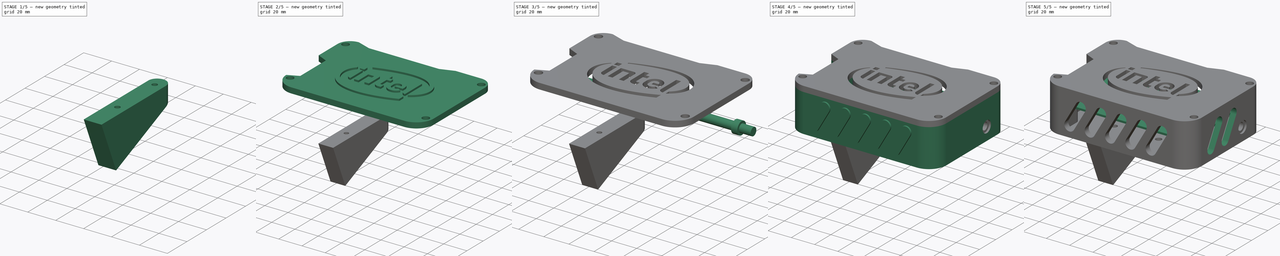
[diagram: build sequence overview — one tinted view per stage of 5, left to right]
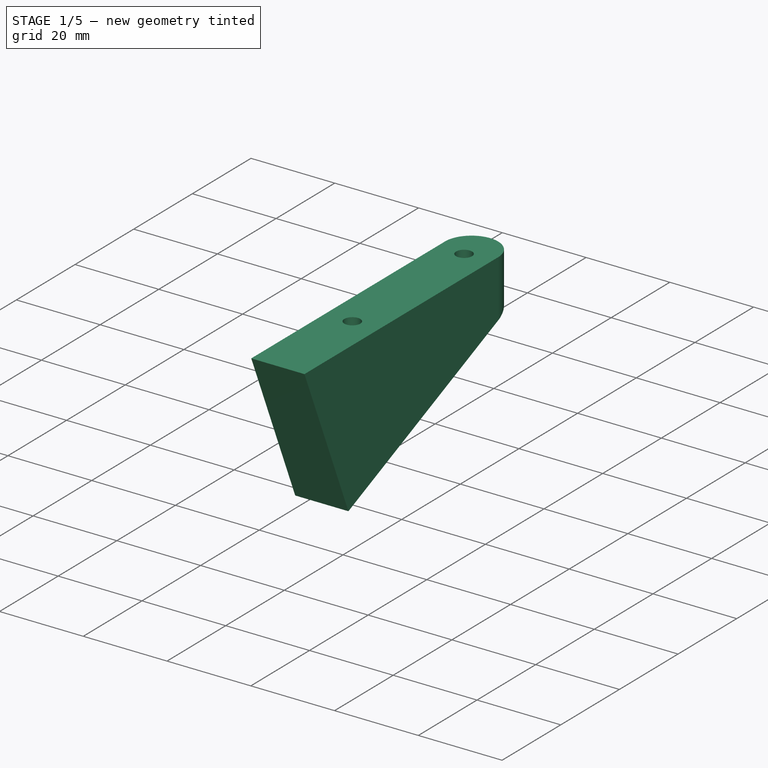
[diagram: stage 1 of 5 — iso view after this stage's code; geometry added in this stage tinted green]
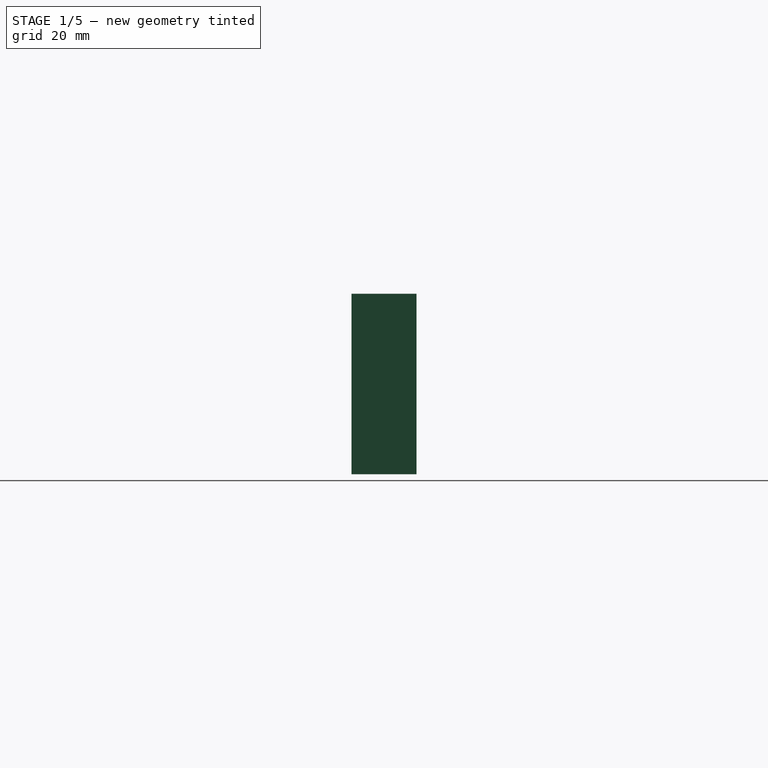
[diagram: stage 1 of 5 — front view after this stage's code; geometry added in this stage tinted green]
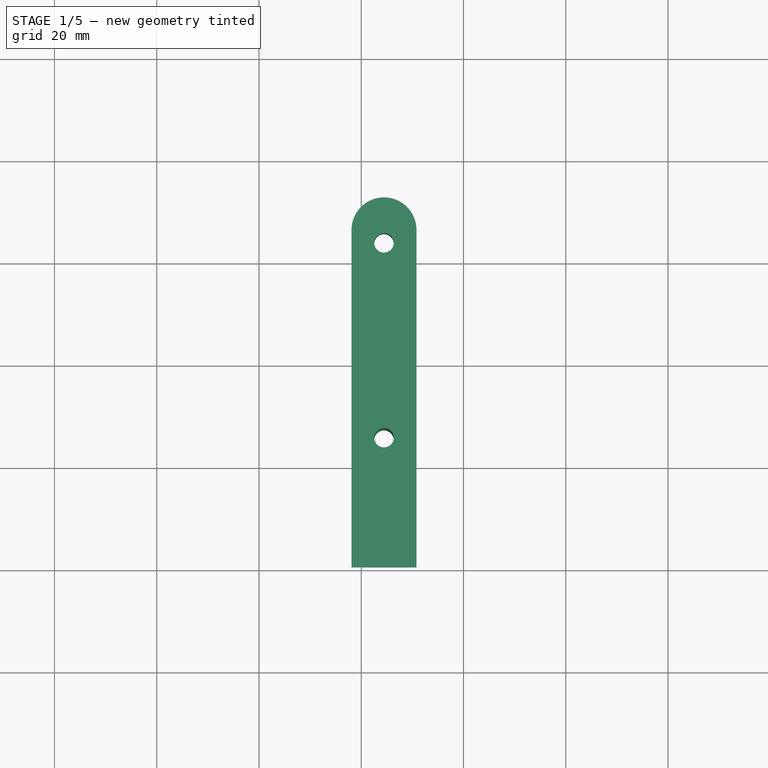
[diagram: stage 1 of 5 — top view after this stage's code; geometry added in this stage tinted green]
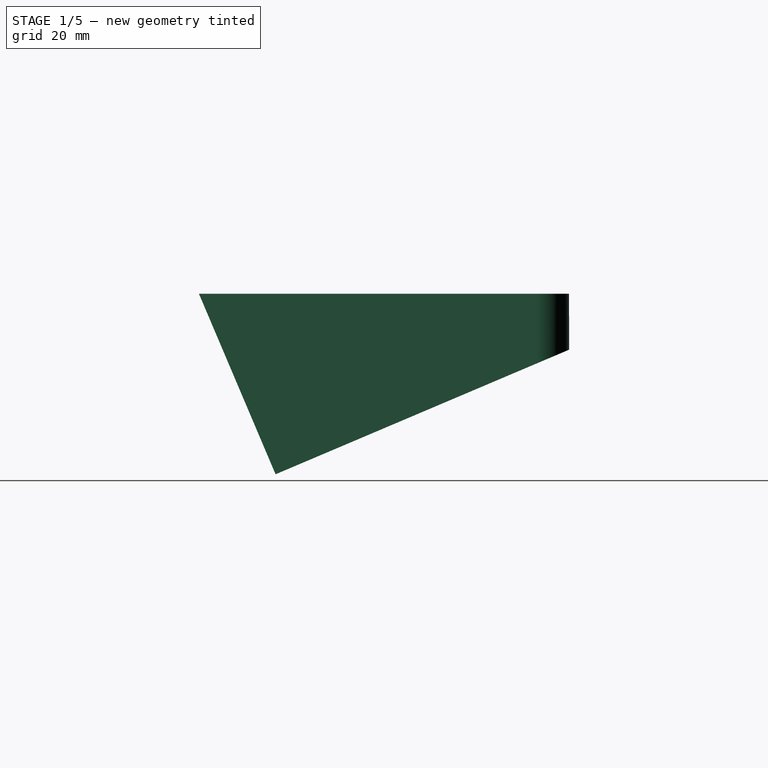
[diagram: stage 1 of 5 — right view after this stage's code; geometry added in this stage tinted green]
FCSTD DOCUMENT  (FreeCAD 0.20R29177 (Git))
Label: Intel Galileo Case
License: All rights reserved
LicenseURL: http://en.wikipedia.org/wiki/All_rights_reserved
objects: Sketcher::SketchObject×17, Part::Extrusion×15, Part::Cut×8, Part::MultiFuse×2, Part::Box×2
note: 44 computed .brp shape members not serialized (recipe doc carries the construction recipe); baked Part::Feature solids carry a one-line shape summary decoded from their .brp

FEATURE [Sketcher::SketchObject] Sketch015  label="Back Stand Sketch"
  ExternalGeometry = -> [Sketch]
  FullyConstrained = true
  sketch-geometry (60):
    g0: Circle CenterX=44.45 CenterY=63.5 CenterZ=0 NormalX=0 NormalY=0 NormalZ=1 AngleXU=0 Radius=1.905
    g1: Circle CenterX=82.55 CenterY=63.5 CenterZ=0 NormalX=0 NormalY=0 NormalZ=1 AngleXU=0 Radius=1.905
    g2: Circle CenterX=82.55 CenterY=25.4 CenterZ=0 NormalX=0 NormalY=0 NormalZ=1 AngleXU=0 Radius=1.905
    g3: Circle CenterX=44.45 CenterY=25.4 CenterZ=0 NormalX=0 NormalY=0 NormalZ=1 AngleXU=0 Radius=1.905
    g4: LineSegment StartX=88.3517 StartY=66.0812 StartZ=0 EndX=110.643 EndY=15.9781 EndZ=0
    g5: LineSegment StartX=14.986 StartY=1.8e-15 StartZ=0 EndX=112.014 EndY=-1.07e-14 EndZ=0
    g6: LineSegment StartX=44.45 StartY=63.5 StartZ=0 EndX=50.8 EndY=63.5 EndZ=0
    g7: LineSegment StartX=44.45 StartY=63.5 StartZ=0 EndX=38.6483 EndY=66.0812 EndZ=0
    g8: LineSegment StartX=76.2 StartY=63.5 StartZ=0 EndX=82.55 EndY=63.5 EndZ=0
    g9: LineSegment StartX=82.55 StartY=63.5 StartZ=0 EndX=88.3517 EndY=66.0812 EndZ=0
    g10: ArcOfCircle CenterX=44.45 CenterY=63.5 CenterZ=0 NormalX=0 NormalY=0 NormalZ=1 AngleXU=0 Radius=6.35 StartAngle=0 EndAngle=2.72298
    g11: ArcOfCircle CenterX=82.55 CenterY=63.5 CenterZ=0 NormalX=0 NormalY=0 NormalZ=1 AngleXU=0 Radius=6.35 StartAngle=0.418616 EndAngle=3.14159
    g12: LineSegment StartX=44.45 StartY=63.5 StartZ=0 EndX=63.5 EndY=63.5 EndZ=0
    g13: LineSegment StartX=63.5 StartY=63.5 StartZ=0 EndX=82.55 EndY=63.5 EndZ=0
    g14: LineSegment StartX=50.8 StartY=35.052 StartZ=0 EndX=50.8 EndY=63.5 EndZ=0
    g15: LineSegment StartX=38.6483 StartY=66.0812 StartZ=0 EndX=16.3568 EndY=15.9781 EndZ=0
    g16: LineSegment StartX=14.986 StartY=1.8e-15 StartZ=0 EndX=14.986 EndY=9.525 EndZ=0
    g17: ArcOfCircle CenterX=30.861 CenterY=9.525 CenterZ=0 NormalX=0 NormalY=0 NormalZ=1 AngleXU=0 Radius=15.875 StartAngle=2.72298 EndAngle=3.14159
    g18: LineSegment StartX=30.861 StartY=9.525 StartZ=0 EndX=16.3568 EndY=15.9781 EndZ=0
    g19: LineSegment StartX=30.861 StartY=9.525 StartZ=0 EndX=14.986 EndY=9.525 EndZ=0
    g20: LineSegment StartX=112.014 StartY=-1.07e-14 StartZ=0 EndX=112.014 EndY=9.525 EndZ=0
    g21: LineSegment StartX=112.014 StartY=9.525 StartZ=0 EndX=96.139 EndY=9.525 EndZ=0
    g22: LineSegment StartX=96.139 StartY=9.525 StartZ=0 EndX=110.643 EndY=15.9781 EndZ=0
    g23: ArcOfCircle CenterX=96.139 CenterY=9.525 CenterZ=0 NormalX=0 NormalY=0 NormalZ=1 AngleXU=0 Radius=15.875 StartAngle=0 EndAngle=0.418616
    g24: ArcOfCircle CenterX=30.861 CenterY=15.875 CenterZ=0 NormalX=0 NormalY=0 NormalZ=1 AngleXU=0 Radius=6.35 StartAngle=2.72298 EndAngle=4.71239
    g25: ArcOfCircle CenterX=31.75 CenterY=15.875 CenterZ=0 NormalX=0 NormalY=0 NormalZ=1 AngleXU=0 Radius=6.35 StartAngle=4.71239 EndAngle=6.28319
    g26: LineSegment StartX=31.75 StartY=15.875 StartZ=0 EndX=31.75 EndY=9.525 EndZ=0
    g27: LineSegment StartX=31.75 StartY=15.875 StartZ=0 EndX=38.1 EndY=15.875 EndZ=0
    g28: LineSegment StartX=30.861 StartY=15.875 StartZ=0 EndX=30.861 EndY=9.525 EndZ=0
    g29: LineSegment StartX=30.861 StartY=15.875 StartZ=0 EndX=25.0593 EndY=18.4562 EndZ=0
    g30: LineSegment StartX=30.861 StartY=9.525 StartZ=0 EndX=31.75 EndY=9.525 EndZ=0
    g31: LineSegment StartX=38.1 StartY=15.875 StartZ=0 EndX=38.1 EndY=35.052 EndZ=0
    g32: LineSegment StartX=25.0593 StartY=18.4562 StartZ=0 EndX=32.9314 EndY=36.1499 EndZ=0
    g33: ArcOfCircle CenterX=35.3991 CenterY=35.052 CenterZ=0 NormalX=0 NormalY=0 NormalZ=1 AngleXU=0 Radius=2.70089 StartAngle=0 EndAngle=2.72298
    g34: LineSegment StartX=35.3991 StartY=35.052 StartZ=0 EndX=38.1 EndY=35.052 EndZ=0
    g35: LineSegment StartX=35.3991 StartY=35.052 StartZ=0 EndX=32.9314 EndY=36.1499 EndZ=0
    g36: Circle CenterX=44.45 CenterY=25.4 CenterZ=0 NormalX=0 NormalY=0 NormalZ=1 AngleXU=0 Radius=3.048
    g37: Circle CenterX=44.45 CenterY=63.5 CenterZ=0 NormalX=0 NormalY=0 NormalZ=1 AngleXU=0 Radius=3.048
    g38: Circle CenterX=82.55 CenterY=63.5 CenterZ=0 NormalX=0 NormalY=0 NormalZ=1 AngleXU=0 Radius=3.048
    g39: Circle CenterX=82.55 CenterY=25.4 CenterZ=0 NormalX=0 NormalY=0 NormalZ=1 AngleXU=0 Radius=3.048
    g40: LineSegment StartX=88.9 StartY=15.875 StartZ=0 EndX=95.25 EndY=15.875 EndZ=0
    g41: LineSegment StartX=95.25 StartY=15.875 StartZ=0 EndX=95.25 EndY=9.525 EndZ=0
    g42: LineSegment StartX=96.139 StartY=9.525 StartZ=0 EndX=96.139 EndY=15.875 EndZ=0
    g43: LineSegment StartX=96.139 StartY=15.875 StartZ=0 EndX=101.941 EndY=18.4562 EndZ=0
    g44: LineSegment StartX=88.9 StartY=35.052 StartZ=0 EndX=91.6009 EndY=35.052 EndZ=0
    g45: LineSegment StartX=91.6009 StartY=35.052 StartZ=0 EndX=94.0686 EndY=36.1499 EndZ=0
    g46: LineSegment StartX=88.9 StartY=35.052 StartZ=0 EndX=88.9 EndY=15.875 EndZ=0
    g47: LineSegment StartX=95.25 StartY=9.525 StartZ=0 EndX=96.139 EndY=9.525 EndZ=0
    g48: LineSegment StartX=101.941 StartY=18.4562 StartZ=0 EndX=94.0686 EndY=36.1499 EndZ=0
    g49: ArcOfCircle CenterX=95.25 CenterY=15.875 CenterZ=0 NormalX=0 NormalY=0 NormalZ=1 AngleXU=0 Radius=6.35 StartAngle=3.14159 EndAngle=4.71239
    g50: ArcOfCircle CenterX=96.139 CenterY=15.875 CenterZ=0 NormalX=0 NormalY=0 NormalZ=1 AngleXU=0 Radius=6.35 StartAngle=4.71239 EndAngle=6.7018
    g51: ArcOfCircle CenterX=91.6009 CenterY=35.052 CenterZ=0 NormalX=0 NormalY=0 NormalZ=1 AngleXU=0 Radius=2.70089 StartAngle=0.418616 EndAngle=3.14159
    g52: LineSegment StartX=30.861 StartY=15.875 StartZ=0 EndX=31.75 EndY=15.875 EndZ=0
    g53: LineSegment StartX=96.139 StartY=15.875 StartZ=0 EndX=95.25 EndY=15.875 EndZ=0
    g54: LineSegment StartX=31.75 StartY=9.525 StartZ=0 EndX=95.25 EndY=9.525 EndZ=0
    g55: LineSegment StartX=38.1 StartY=35.052 StartZ=0 EndX=88.9 EndY=35.052 EndZ=0
    g56: LineSegment StartX=63.5 StartY=63.5 StartZ=0 EndX=63.5 EndY=35.052 EndZ=0
    g57: LineSegment StartX=76.2 StartY=63.5 StartZ=0 EndX=76.2 EndY=35.052 EndZ=0
    g58: ArcOfCircle CenterX=63.5 CenterY=35.052 CenterZ=0 NormalX=0 NormalY=0 NormalZ=1 AngleXU=0 Radius=12.7 StartAngle=3.14159 EndAngle=6.28319
    g59: LineSegment StartX=38.1 StartY=22.352 StartZ=0 EndX=88.9 EndY=22.352 EndZ=0
  constraints (152):
    c: Coincident(g0,g-3)
    c: Coincident(g1,g-4)
    c: Coincident(g2,g-5)
    c: Coincident(g3,g-6)
    c: Equal(g0,g1)
    c: Equal(g1,g2)
    c: Equal(g2,g3)
    c: Diameter(g0) = 3.81
    c: Coincident(g5,g-7)
    c: Coincident(g6,g0)
    c: Coincident(g7,g0)
    c: Coincident(g8,g1)
    c: Coincident(g9,g1)
    c: Coincident(g9,g4)
    c: Equal(g6,g8)
    c: Coincident(g10,g0)
    c: Coincident(g11,g1)
    c: Coincident(g11,g4)
    c: Coincident(g12,g0)
    c: Horizontal(g12)
    c: Coincident(g12,g13)
    c: Coincident(g13,g1)
    c: Equal(g12,g13)
    c: Coincident(g14,g10)
    c: Angle(g6,g14) = 1.5708
    c: Angle(g9,g4) = 1.5708
    c: Coincident(g6,g10)
    c: Coincident(g8,g11)
    c: Coincident(g15,g10)
    c: Angle(g15,g7) = 1.5708
    c: Coincident(g7,g10)
    c: Coincident(g16,g5)
    c: Vertical(g16)
    c: Coincident(g17,g16)
    c: Coincident(g17,g15)
    c: Coincident(g18,g17)
    c: Coincident(g18,g15)
    c: Coincident(g19,g17)
    c: Coincident(g19,g16)
    c: Horizontal(g19)
    c: Angle(g18,g15) = 1.5708
    c: Coincident(g-7,g5)
    c: Coincident(g20,g5)
    c: Vertical(g20)
    c: Coincident(g21,g20)
    c: Horizontal(g21)
    c: Coincident(g22,g21)
    c: Coincident(g22,g4)
    c: Coincident(g23,g21)
    c: Coincident(g23,g20)
    c: Coincident(g23,g4)
    c: Angle(g4,g22) = 1.5708
    c: DistanceY(g5,g16) = 9.525
    c: Coincident(g26,g25)
    c: Coincident(g26,g25)
    c: Vertical(g26)
    c: Coincident(g27,g25)
    c: Coincident(g27,g25)
    c: Coincident(g28,g24)
    c: Coincident(g28,g24)
    c: Vertical(g28)
    c: Coincident(g29,g24)
    c: Coincident(g29,g24)
    c: Horizontal(g27)
    c: Coincident(g30,g24)
    c: Coincident(g30,g25)
    c: Horizontal(g30)
    c: Coincident(g31,g25)
    c: Vertical(g31)
    c: Coincident(g32,g24)
    c: Angle(g29,g32) = 1.5708
    c: Coincident(g33,g32)
    c: Coincident(g33,g31)
    c: Coincident(g34,g33)
    c: Coincident(g34,g31)
    c: Coincident(g35,g33)
    c: Coincident(g35,g32)
    c: Horizontal(g34)
    c: Angle(g32,g35) = 1.5708
    c: Parallel(g32,g15)
    c: Coincident(g36,g3)
    c: Coincident(g37,g0)
    c: Coincident(g38,g1)
    c: Coincident(g39,g2)
    c: Equal(g39,g36)
    c: Equal(g36,g38)
    c: Equal(g38,g37)
    c: Diameter(g37) = 6.096
    c: Coincident(g17,g24)
    c: Coincident(g41,g40)
    c: Vertical(g41)
    c: Vertical(g42)
    c: Horizontal(g44)
    c: Coincident(g45,g44)
    c: Coincident(g46,g44)
    c: Coincident(g46,g40)
    c: Vertical(g46)
    c: Coincident(g47,g41)
    c: Coincident(g47,g42)
    c: Coincident(g48,g43)
    c: Coincident(g48,g45)
    c: Horizontal(g47)
    c: Horizontal(g40)
    c: Coincident(g49,g40)
    c: Coincident(g49,g46)
    c: Coincident(g49,g47)
    c: Coincident(g50,g42)
    c: Coincident(g50,g47)
    c: Coincident(g50,g48)
    c: Coincident(g51,g44)
    c: Coincident(g51,g46)
    c: Coincident(g51,g48)
    c: Angle(g45,g48) = 1.5708
    c: Angle(g48,g43) = 1.5708
    c: Coincident(g43,g50)
    c: Coincident(g52,g24)
    c: Coincident(g52,g25)
    c: Horizontal(g52)
    c: Coincident(g53,g50)
    c: Coincident(g53,g49)
    c: Horizontal(g53)
    c: Coincident(g47,g23)
    c: Coincident(g54,g25)
    c: Coincident(g54,g47)
    c: Horizontal(g54)
    c: Equal(g26,g41)
    c: Equal(g19,g21)
    c: Parallel(g4,g48)
    c: Coincident(g55,g31)
    c: Coincident(g55,g46)
    c: Horizontal(g55)
    c: Equal(g52,g53)
    c: PointOnObject(g14,g55)
    c: DistanceX(g16,g17) = 15.875
    c: DistanceX(g25,g3) = 6.35
    c: Distance(g0,g10) = 6.35
    c: DistanceX(g25,g25) = 6.35
    c: Coincident(g56,g12)
    c: PointOnObject(g56,g55)
    c: Vertical(g56)
    c: Vertical(g14)
    c: Coincident(g57,g11)
    c: PointOnObject(g57,g55)
    c: Angle(g57,g8) = 1.5708
    c: Coincident(g58,g56)
    c: Coincident(g58,g14)
    c: Coincident(g58,g57)
    c: PointOnObject(g59,g31)
    c: PointOnObject(g59,g46)
    c: Horizontal(g59)
    c: Tangent(g36,g59)
    c: Tangent(g58,g59)
FEATURE [Sketcher::SketchObject] Sketch016
  ExternalGeometry = -> [Sketch]
  FullyConstrained = true
  sketch-geometry (8):
    g0: LineSegment StartX=38.1 StartY=66.04 StartZ=0 EndX=38.1 EndY=0 EndZ=0
    g1: LineSegment StartX=38.1 StartY=-1.2e-15 StartZ=0 EndX=50.8 EndY=-2.8e-15 EndZ=0
    g2: LineSegment StartX=50.8 StartY=-2.8e-15 StartZ=0 EndX=50.8 EndY=66.04 EndZ=0
    g3: ArcOfCircle CenterX=44.45 CenterY=66.04 CenterZ=0 NormalX=0 NormalY=0 NormalZ=1 AngleXU=0 Radius=6.35 StartAngle=-5.3e-15 EndAngle=3.14159
    g4: LineSegment StartX=38.1 StartY=66.04 StartZ=0 EndX=50.8 EndY=66.04 EndZ=0
    g5: LineSegment StartX=44.45 StartY=66.04 StartZ=0 EndX=44.45 EndY=63.5 EndZ=0
    g6: Circle CenterX=44.45 CenterY=63.5 CenterZ=0 NormalX=0 NormalY=0 NormalZ=1 AngleXU=0 Radius=1.905
    g7: Circle CenterX=44.45 CenterY=25.4 CenterZ=0 NormalX=0 NormalY=0 NormalZ=1 AngleXU=0 Radius=1.905
  constraints (21):
    c: PointOnObject(g0,g-5)
    c: Vertical(g0)
    c: PointOnObject(g1,g-5)
    c: Coincident(g2,g1)
    c: Vertical(g2)
    c: Coincident(g3,g0)
    c: Coincident(g3,g2)
    c: Coincident(g4,g0)
    c: Coincident(g4,g2)
    c: Horizontal(g4)
    c: PointOnObject(g3,g4)
    c: Coincident(g5,g3)
    c: Coincident(g5,g-3)
    c: Vertical(g5)
    c: DistanceX(g0,g1) = 12.7
    c: Coincident(g1,g0)
    c: Coincident(g6,g5)
    c: Coincident(g7,g-4)
    c: Diameter(g7) = 3.81
    c: Diameter(g6) = 3.81
    c: PointOnObject(g3,g-3)
FEATURE [Part::Extrusion] Extrude015
  Base = -> Sketch016
  Dir = (0,0,1)
  DirMode = 2
  FaceMakerClass = Part::FaceMakerBullseye
  LengthFwd = 38.1
  LengthRev = 0
  Placement = pos=(0,0,-38.1) rot=(0,0,1;0rad)
  Solid = true
  Symmetric = false
FEATURE [Part::Box] Box  label="Cube"
  AttacherType = Attacher::AttachEngine3D
  Height = 50.8
  Length = 127
  Placement = pos=(29.7164,0,0) rot=(1,0,0;3.54302rad)
  Width = 25.4
FEATURE [Part::Box] Box001  label="Cube001"
  AttacherType = Attacher::AttachEngine3D
  Height = 38.1
  Length = 127
  Placement = pos=(-25.5815,16.1725,-76.2) rot=(1,0,0;0.401426rad)
  Width = 101.6
FEATURE [Part::Cut] Cut007
  Base = -> Extrude015
  Tool = -> Box
FEATURE [Part::Cut] Cut008
  Base = -> Cut007
  Tool = -> Box001
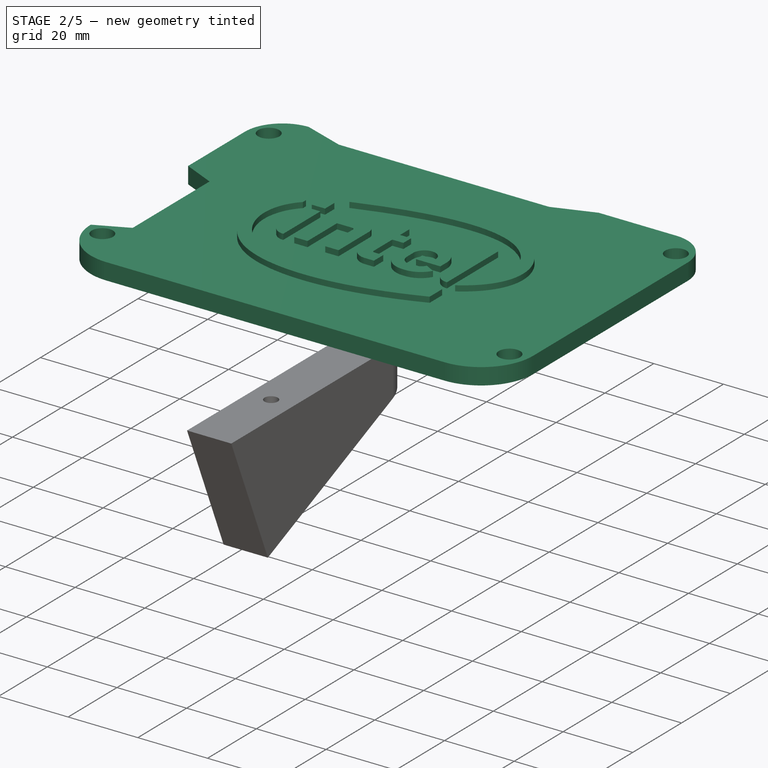
[diagram: stage 2 of 5 — iso view after this stage's code; geometry added in this stage tinted green]
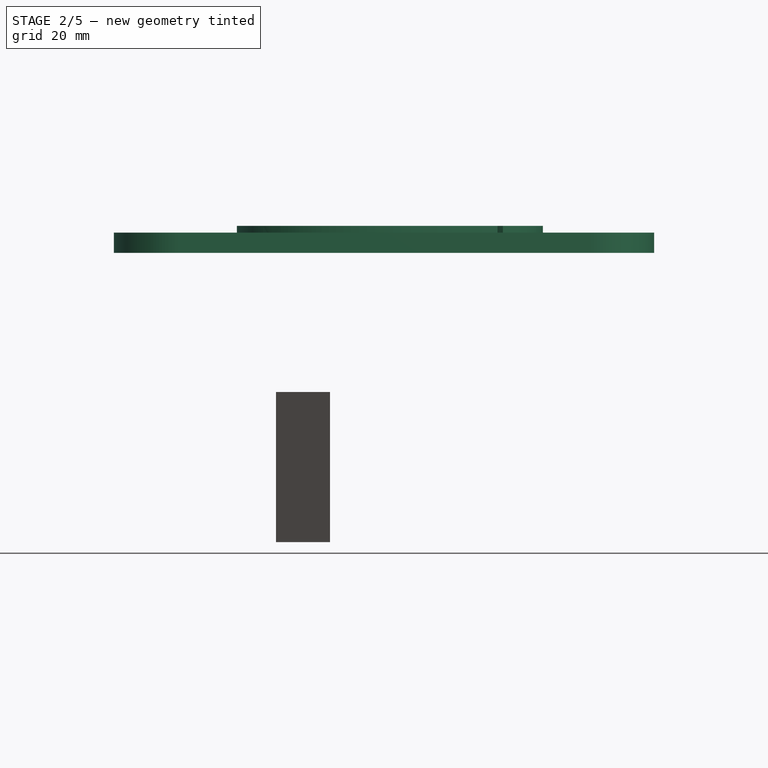
[diagram: stage 2 of 5 — front view after this stage's code; geometry added in this stage tinted green]
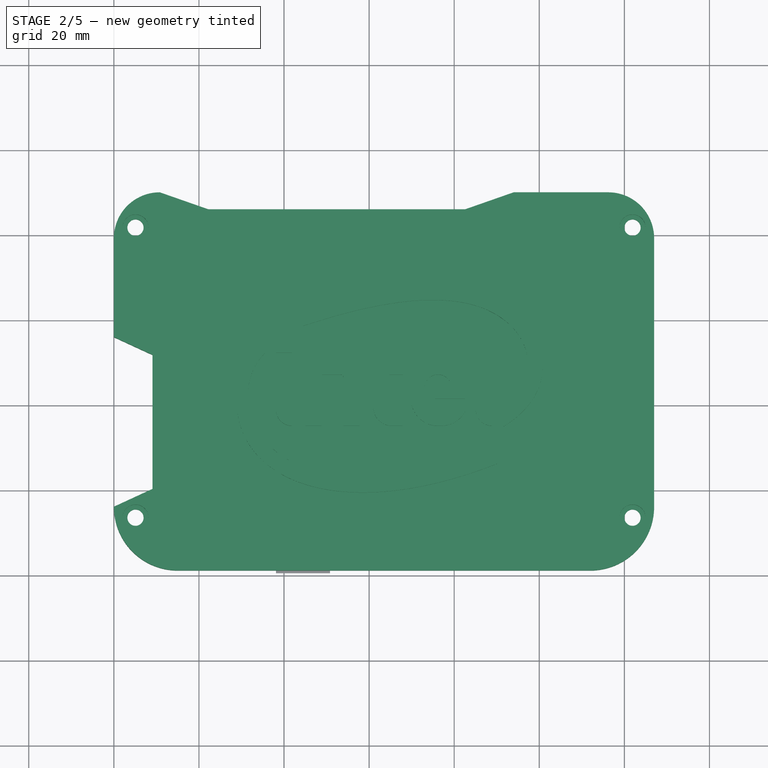
[diagram: stage 2 of 5 — top view after this stage's code; geometry added in this stage tinted green]
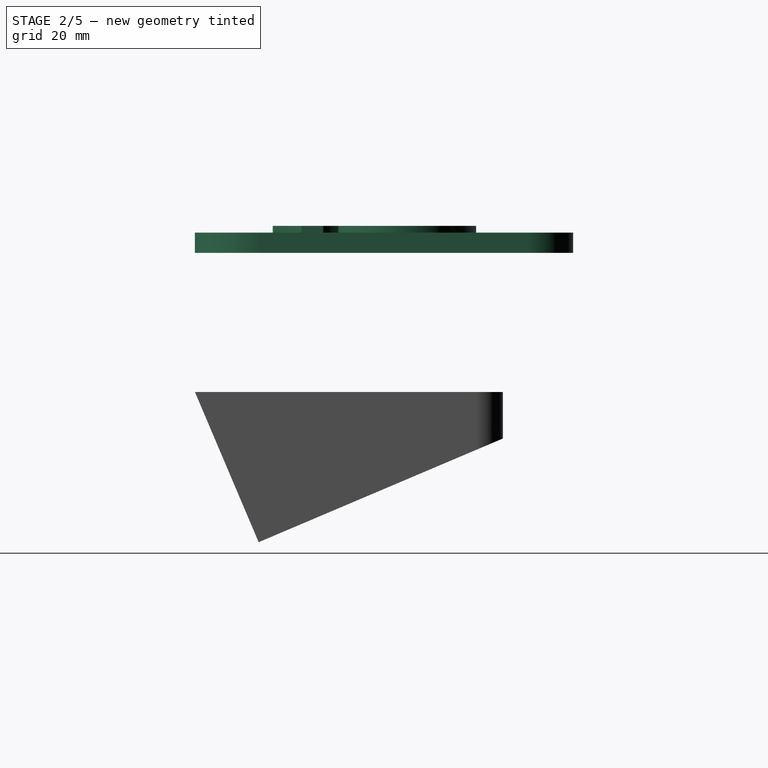
[diagram: stage 2 of 5 — right view after this stage's code; geometry added in this stage tinted green]
FEATURE [Part::Extrusion] Extrude006  label="Intel Extrusion"
  Base = -> Sketch007
  Dir = (0,0,1)
  DirMode = 2
  FaceMakerClass = Part::FaceMakerBullseye
  LengthFwd = 6.35
  LengthRev = 0
  Placement = pos=(0,0,32.7025) rot=(0,0,1;0rad)
  Solid = true
  Symmetric = false
FEATURE [Sketcher::SketchObject] Sketch012
  ExternalGeometry = -> [Sketch006]
  FullyConstrained = false
  sketch-geometry (4):
    g0: Circle CenterX=5.08 CenterY=80.645 CenterZ=0 NormalX=0 NormalY=0 NormalZ=1 AngleXU=0 Radius=3.048
    g1: Circle CenterX=121.92 CenterY=80.645 CenterZ=0 NormalX=0 NormalY=0 NormalZ=1 AngleXU=0 Radius=3.048
    g2: Circle CenterX=5.08 CenterY=12.446 CenterZ=0 NormalX=0 NormalY=0 NormalZ=1 AngleXU=0 Radius=3.048
    g3: Circle CenterX=121.92 CenterY=12.446 CenterZ=0 NormalX=0 NormalY=0 NormalZ=1 AngleXU=0 Radius=3.048
  constraints (4):
    c: Equal(g2,g3)
    c: Equal(g3,g1)
    c: Equal(g1,g0)
    c: Diameter(g0) = 6.096
FEATURE [Part::Extrusion] Extrude011  label="Top Screw Holes"
  Base = -> Sketch012
  Dir = (0,0,1)
  DirMode = 2
  FaceMakerClass = Part::FaceMakerBullseye
  LengthFwd = 6.35
  LengthRev = 0
  Placement = pos=(0,0,34.6075) rot=(0,0,1;0rad)
  Solid = true
  Symmetric = false
FEATURE [Part::Extrusion] Extrude012  label="Top Extrusion"
  Base = -> Sketch006
  Dir = (0,0,1)
  DirMode = 2
  FaceMakerClass = Part::FaceMakerBullseye
  LengthFwd = 4.7625
  LengthRev = 0
  Placement = pos=(0,0,32.7025) rot=(0,0,1;0rad)
  Solid = true
  Symmetric = false
FEATURE [Part::Cut] Cut  label="Top Lid"
  Base = -> Extrude012
  Tool = -> Extrude011
FEATURE [Sketcher::SketchObject] Sketch017
  ExternalGeometry = -> [Sketch]
  FullyConstrained = true
  sketch-geometry (2):
    g0: Circle CenterX=44.45 CenterY=63.5 CenterZ=0 NormalX=0 NormalY=0 NormalZ=1 AngleXU=0 Radius=3.048
    g1: Circle CenterX=44.45 CenterY=25.4 CenterZ=0 NormalX=0 NormalY=0 NormalZ=1 AngleXU=0 Radius=3.048
  constraints (4):
    c: Coincident(g0,g-3)
    c: Coincident(g1,g-4)
    c: Equal(g0,g1)
    c: Diameter(g0) = 6.096
FEATURE [Part::Extrusion] Extrude016
  Base = -> Sketch017
  Dir = (0,0,1)
  DirMode = 2
  FaceMakerClass = Part::FaceMakerBullseye
  LengthFwd = 50.8
  LengthRev = 0
  Placement = pos=(0,0,-57.15) rot=(0,0,1;0rad)
  Solid = true
  Symmetric = false
FEATURE [Part::Cut] Cut009  label="Simple Stand Leg"
  Base = -> Cut008
  Tool = -> Extrude016
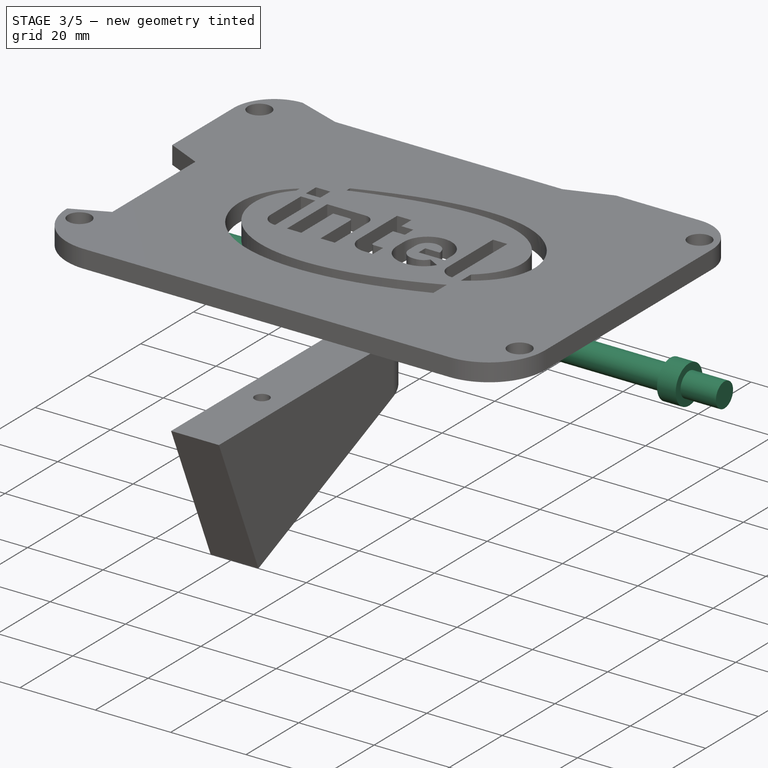
[diagram: stage 3 of 5 — iso view after this stage's code; geometry added in this stage tinted green]
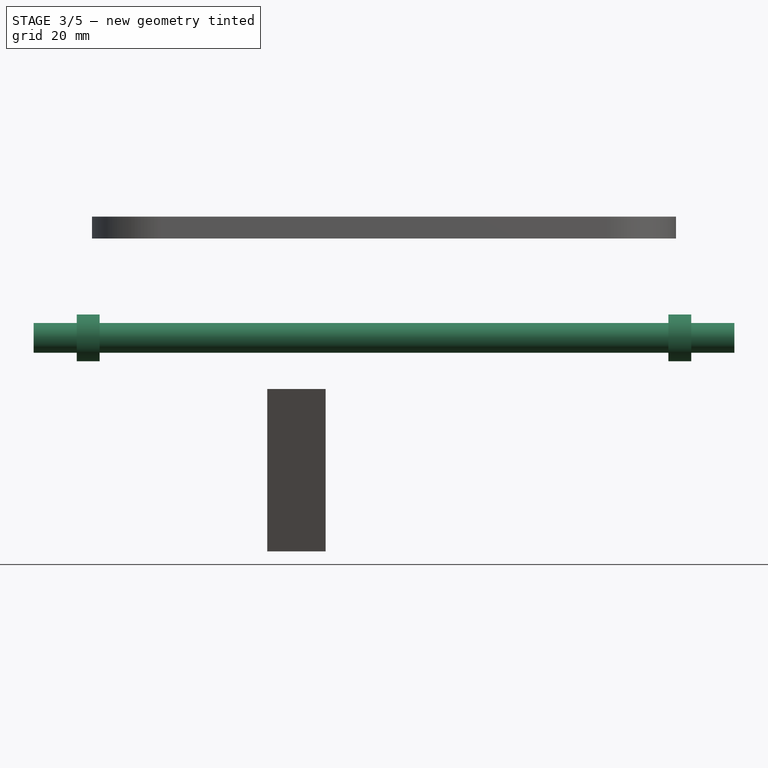
[diagram: stage 3 of 5 — front view after this stage's code; geometry added in this stage tinted green]
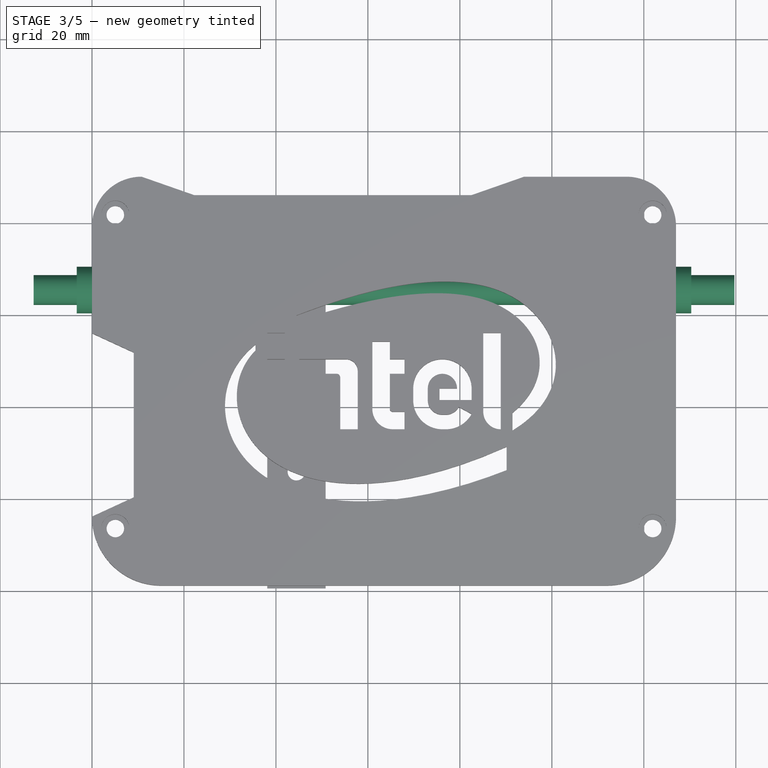
[diagram: stage 3 of 5 — top view after this stage's code; geometry added in this stage tinted green]
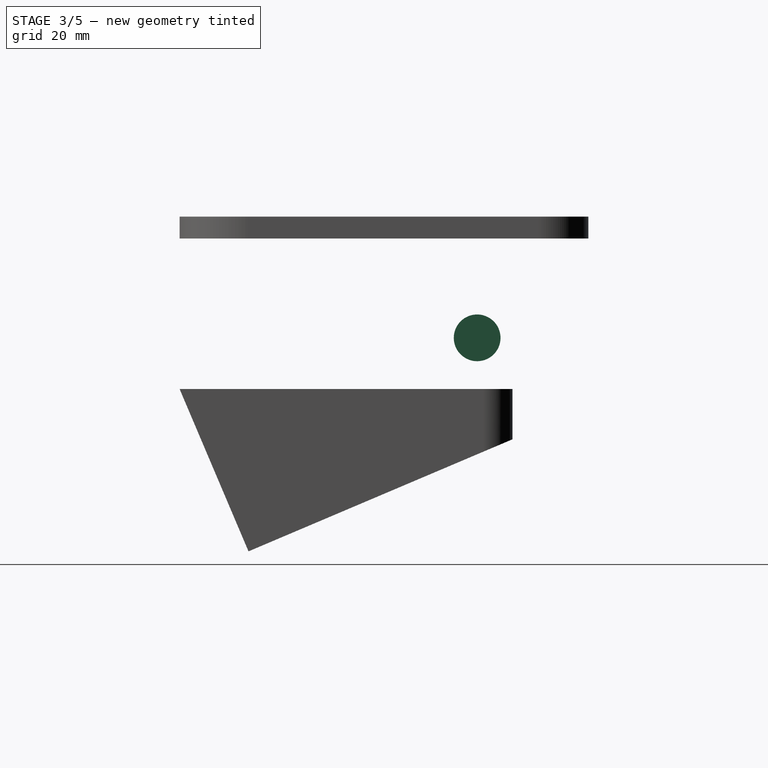
[diagram: stage 3 of 5 — right view after this stage's code; geometry added in this stage tinted green]
FEATURE [Part::Extrusion] Extrude001  label="MidBottom Extrusion"
  Base = -> Sketch002
  Dir = (0,0,1)
  DirMode = 2
  FaceMakerClass = Part::FaceMakerBullseye
  LengthFwd = 12.7
  LengthRev = 0
  Placement = pos=(0,0,4.7625) rot=(0,0,1;0rad)
  Solid = true
  Symmetric = false
FEATURE [Sketcher::SketchObject] Sketch009  label="Wifi Antenna Sketch"
  ExternalGeometry = -> [Extrude001]
  FullyConstrained = false
  Placement = pos=(0,0,0) rot=(0.57735,0.57735,0.57735;2.0944rad)
  sketch-geometry (1):
    g0: Circle CenterX=64.7065 CenterY=11.1125 CenterZ=0 NormalX=0 NormalY=0 NormalZ=1 AngleXU=0 Radius=3.2385
  constraints (3):
    c: DistanceX(g0,g-3) = 24.1935
    c: DistanceY(g-4,g0) = 11.1125
    c: Diameter(g0) = 6.477
FEATURE [Part::Extrusion] Extrude008  label="Antenna Extrusion"
  Base = -> Sketch009
  Dir = (1,0,0)
  DirMode = 2
  FaceMakerClass = Part::FaceMakerBullseye
  LengthFwd = 152.4
  LengthRev = 0
  Placement = pos=(-12.7,0,0) rot=(0,0,1;0rad)
  Solid = true
  Symmetric = false
FEATURE [Sketcher::SketchObject] Sketch010
  ExternalGeometry = -> [Sketch009]
  FullyConstrained = true
  Placement = pos=(0,0,0) rot=(0.57735,0.57735,0.57735;2.0944rad)
  sketch-geometry (1):
    g0: Circle CenterX=64.7065 CenterY=11.1125 CenterZ=0 NormalX=0 NormalY=0 NormalZ=1 AngleXU=0 Radius=5.08
  constraints (2):
    c: Coincident(g0,g-3)
    c: Diameter(g0) = 10.16
FEATURE [Part::Extrusion] Extrude009  label="Wifi Nut Left"
  Base = -> Sketch010
  Dir = (1,0,0)
  DirMode = 2
  FaceMakerClass = Part::FaceMakerBullseye
  LengthFwd = 4.953
  LengthRev = 0
  Placement = pos=(-3.302,0,0) rot=(0,0,1;0rad)
  Solid = true
  Symmetric = false
FEATURE [Sketcher::SketchObject] Sketch011
  ExternalGeometry = -> [Sketch009]
  FullyConstrained = true
  Placement = pos=(0,0,0) rot=(0.57735,0.57735,0.57735;2.0944rad)
  sketch-geometry (1):
    g0: Circle CenterX=64.7065 CenterY=11.1125 CenterZ=0 NormalX=0 NormalY=0 NormalZ=1 AngleXU=0 Radius=5.08
  constraints (2):
    c: Coincident(g0,g-3)
    c: Diameter(g0) = 10.16
FEATURE [Part::Extrusion] Extrude010  label="Wifi Nut Right"
  Base = -> Sketch011
  Dir = (1,0,0)
  DirMode = 2
  FaceMakerClass = Part::FaceMakerBullseye
  LengthFwd = 4.953
  LengthRev = 0
  Placement = pos=(125.349,0,0) rot=(0,0,1;0rad)
  Solid = true
  Symmetric = false
FEATURE [Part::Cut] Cut006  label="Top Lid with Intel Logo"
  Base = -> Cut
  Tool = -> Extrude006
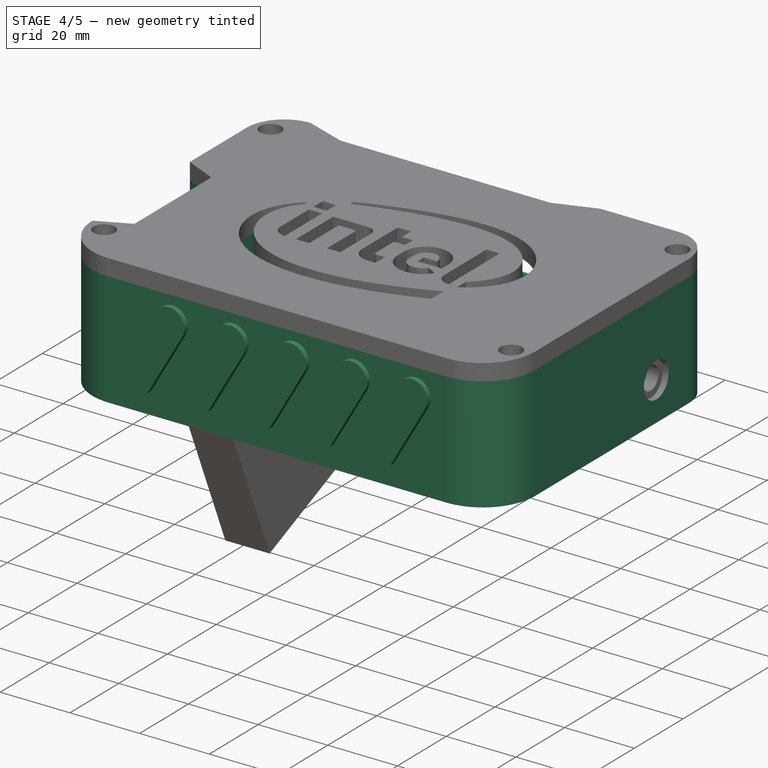
[diagram: stage 4 of 5 — iso view after this stage's code; geometry added in this stage tinted green]
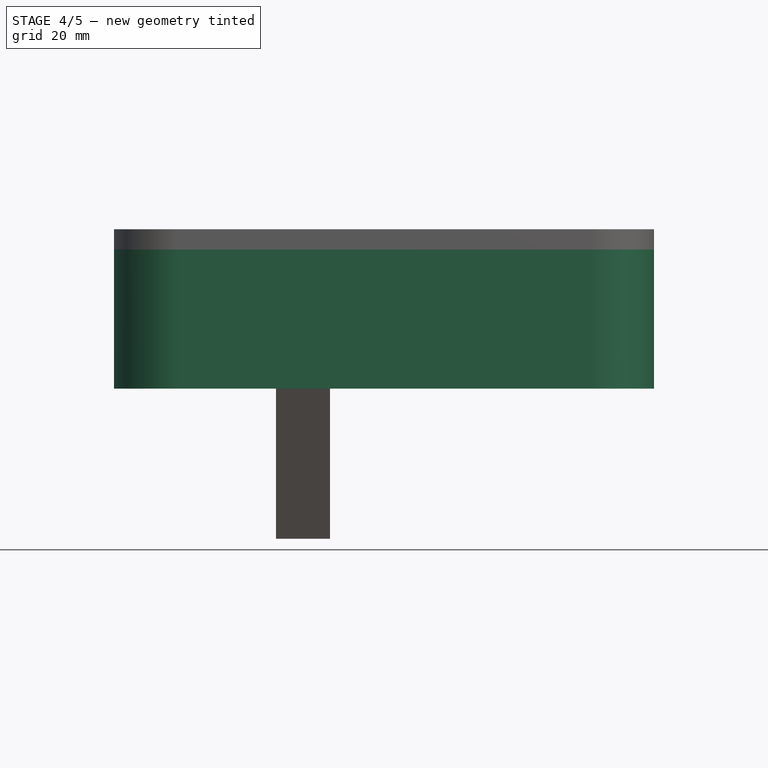
[diagram: stage 4 of 5 — front view after this stage's code; geometry added in this stage tinted green]
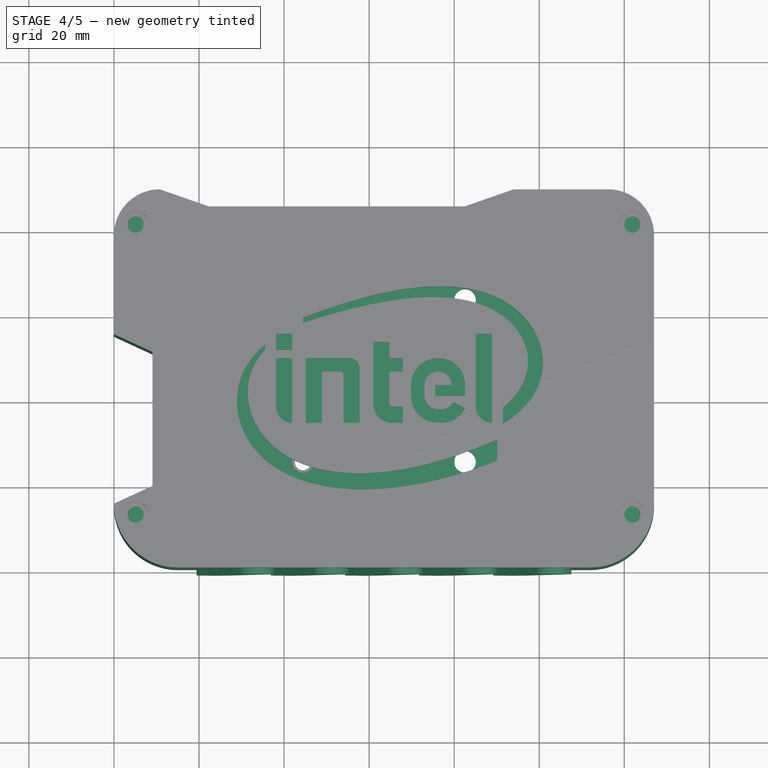
[diagram: stage 4 of 5 — top view after this stage's code; geometry added in this stage tinted green]
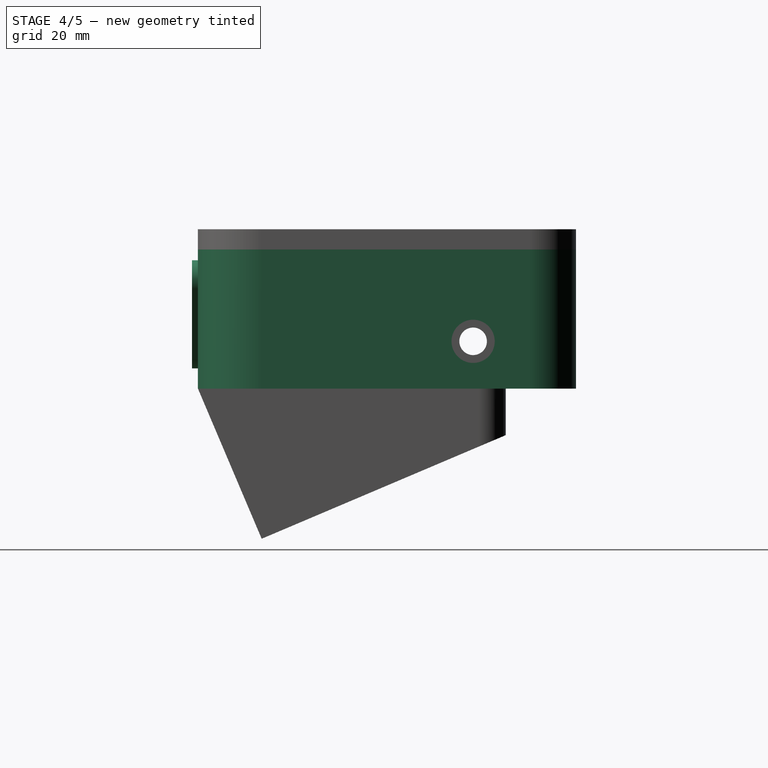
[diagram: stage 4 of 5 — right view after this stage's code; geometry added in this stage tinted green]
FEATURE [Sketcher::SketchObject] Sketch001  label="Galileo Board"
  FullyConstrained = true
  sketch-geometry (20):
    g0: LineSegment StartX=10.795 StartY=83.185 StartZ=0 EndX=116.205 EndY=83.185 EndZ=0
    g1: LineSegment StartX=10.795 StartY=10.795 StartZ=0 EndX=116.205 EndY=10.795 EndZ=0
    g2: LineSegment StartX=10.795 StartY=10.795 StartZ=0 EndX=10.795 EndY=83.185 EndZ=0
    g3: LineSegment StartX=116.205 StartY=83.185 StartZ=0 EndX=116.205 EndY=59.69 EndZ=0
    g4: LineSegment StartX=116.205 StartY=10.795 StartZ=0 EndX=116.205 EndY=22.86 EndZ=0
    g5: LineSegment StartX=118.11 StartY=24.765 StartZ=0 EndX=118.11 EndY=57.785 EndZ=0
    g6: LineSegment StartX=118.11 StartY=57.785 StartZ=0 EndX=116.205 EndY=59.69 EndZ=0
    g7: LineSegment StartX=118.11 StartY=24.765 StartZ=0 EndX=116.205 EndY=22.86 EndZ=0
    g8: Circle CenterX=112.014 CenterY=14.986 CenterZ=0 NormalX=0 NormalY=0 NormalZ=1 AngleXU=0 Radius=1.9685
    g9: Circle CenterX=14.986 CenterY=14.986 CenterZ=0 NormalX=0 NormalY=0 NormalZ=1 AngleXU=0 Radius=1.9685
    g10: Circle CenterX=14.986 CenterY=78.994 CenterZ=0 NormalX=0 NormalY=0 NormalZ=1 AngleXU=0 Radius=1.9685
    g11: Circle CenterX=112.014 CenterY=78.994 CenterZ=0 NormalX=0 NormalY=0 NormalZ=1 AngleXU=0 Radius=1.9685
    g12: LineSegment StartX=112.014 StartY=14.986 StartZ=0 EndX=112.014 EndY=10.795 EndZ=0
    g13: LineSegment StartX=112.014 StartY=14.986 StartZ=0 EndX=116.205 EndY=14.986 EndZ=0
    g14: LineSegment StartX=112.014 StartY=78.994 StartZ=0 EndX=116.205 EndY=78.994 EndZ=0
    g15: LineSegment StartX=112.014 StartY=78.994 StartZ=0 EndX=112.014 EndY=83.185 EndZ=0
    g16: LineSegment StartX=14.986 StartY=78.994 StartZ=0 EndX=10.795 EndY=78.994 EndZ=0
    g17: LineSegment StartX=14.986 StartY=78.994 StartZ=0 EndX=14.986 EndY=83.185 EndZ=0
    g18: LineSegment StartX=14.986 StartY=14.986 StartZ=0 EndX=10.795 EndY=14.986 EndZ=0
    g19: LineSegment StartX=14.986 StartY=14.986 StartZ=0 EndX=14.986 EndY=10.795 EndZ=0
  constraints (60):
    c: Horizontal(g0)
    c: Horizontal(g1)
    c: Coincident(g2,g1)
    c: Coincident(g2,g0)
    c: Vertical(g2)
    c: Coincident(g3,g0)
    c: Vertical(g3)
    c: Coincident(g4,g1)
    c: Vertical(g4)
    c: Vertical(g5)
    c: Coincident(g6,g5)
    c: Coincident(g6,g3)
    c: Coincident(g7,g5)
    c: Coincident(g7,g4)
    c: Angle(g4,g7) = 2.35619
    c: Angle(g6,g3) = 2.35619
    c: Equal(g0,g1)
    c: DistanceX(g1,g1) = 105.41
    c: DistanceY(g1,g0) = 72.39
    c: DistanceX(g1,g5) = 107.315
    c: DistanceY(g1,g4) = 12.065
    c: DistanceY(g3,g0) = 23.495
    c: Diameter(g8) = 3.937
    c: Diameter(g9) = 3.937
    c: Diameter(g11) = 3.937
    c: Diameter(g10) = 3.937
    c: Coincident(g12,g8)
    c: PointOnObject(g12,g1)
    c: Vertical(g12)
    c: Coincident(g13,g8)
    c: PointOnObject(g13,g4)
    c: Horizontal(g13)
    c: Coincident(g14,g11)
    c: PointOnObject(g14,g3)
    c: Horizontal(g14)
    c: Coincident(g15,g11)
    c: PointOnObject(g15,g0)
    c: Vertical(g15)
    c: Coincident(g16,g10)
    c: PointOnObject(g16,g2)
    c: Horizontal(g16)
    c: Coincident(g17,g10)
    c: PointOnObject(g17,g0)
    c: Vertical(g17)
    c: Coincident(g18,g9)
    c: PointOnObject(g18,g2)
    c: Horizontal(g18)
    c: Coincident(g19,g9)
    c: PointOnObject(g19,g1)
    c: Vertical(g19)
    c: Equal(g17,g16)
    c: Equal(g16,g18)
    c: Equal(g18,g19)
    c: Equal(g19,g12)
    c: Equal(g12,g13)
    c: Equal(g13,g14)
    c: Equal(g14,g15)
    c: DistanceX(g8,g13) = 4.191
    c: DistanceX(g-1,g1) = 10.795
    c: DistanceY(g-1,g1) = 10.795
FEATURE [Sketcher::SketchObject] Sketch  label="Bottom Sketch"
  ExternalGeometry = -> [Sketch001]
  FullyConstrained = true
  sketch-geometry (31):
    g0: LineSegment StartX=127 StartY=78.105 StartZ=0 EndX=127 EndY=14.986 EndZ=0
    g1: LineSegment StartX=14.986 StartY=1.8e-15 StartZ=0 EndX=112.014 EndY=-1.07e-14 EndZ=0
    g2: ArcOfCircle CenterX=14.986 CenterY=14.986 CenterZ=0 NormalX=0 NormalY=0 NormalZ=1 AngleXU=0 Radius=14.986 StartAngle=3.14159 EndAngle=4.71239
    g3: ArcOfCircle CenterX=112.014 CenterY=14.986 CenterZ=0 NormalX=0 NormalY=0 NormalZ=1 AngleXU=0 Radius=14.986 StartAngle=4.71239 EndAngle=6.28319
    g4: LineSegment StartX=-1.42e-14 StartY=14.986 StartZ=0 EndX=14.986 EndY=14.986 EndZ=0
    g5: LineSegment StartX=14.986 StartY=14.986 StartZ=0 EndX=14.986 EndY=1.8e-15 EndZ=0
    g6: LineSegment StartX=112.014 StartY=14.986 StartZ=0 EndX=112.014 EndY=-1.07e-14 EndZ=0
    g7: LineSegment StartX=112.014 StartY=14.986 StartZ=0 EndX=127 EndY=14.986 EndZ=0
    g8: LineSegment StartX=10.795 StartY=88.9 StartZ=0 EndX=116.205 EndY=88.9 EndZ=0
    g9: ArcOfCircle CenterX=10.795 CenterY=78.105 CenterZ=0 NormalX=0 NormalY=0 NormalZ=1 AngleXU=0 Radius=10.795 StartAngle=1.5708 EndAngle=3.14159
    g10: ArcOfCircle CenterX=116.205 CenterY=78.105 CenterZ=0 NormalX=0 NormalY=0 NormalZ=1 AngleXU=0 Radius=10.795 StartAngle=0 EndAngle=1.5708
    g11: LineSegment StartX=10.795 StartY=88.9 StartZ=0 EndX=10.795 EndY=78.105 EndZ=0
    g12: LineSegment StartX=10.795 StartY=78.105 StartZ=0 EndX=0 EndY=78.105 EndZ=0
    g13: LineSegment StartX=116.205 StartY=88.9 StartZ=0 EndX=116.205 EndY=78.105 EndZ=0
    g14: LineSegment StartX=116.205 StartY=78.105 StartZ=0 EndX=127 EndY=78.105 EndZ=0
    g15: LineSegment StartX=10.795 StartY=88.9 StartZ=0 EndX=22.225 EndY=84.8995 EndZ=0
    g16: LineSegment StartX=22.225 StartY=84.8995 StartZ=0 EndX=82.55 EndY=84.8995 EndZ=0
    g17: LineSegment StartX=116.205 StartY=88.9 StartZ=0 EndX=93.98 EndY=88.9 EndZ=0
    g18: LineSegment StartX=82.55 StartY=84.8995 StartZ=0 EndX=93.98 EndY=88.9 EndZ=0
    g19: LineSegment StartX=-1.42e-14 StartY=14.986 StartZ=0 EndX=9.0805 EndY=19.177 EndZ=0
    g20: LineSegment StartX=9.0805 StartY=19.177 StartZ=0 EndX=9.0805 EndY=50.673 EndZ=0
    g21: LineSegment StartX=9.0805 StartY=50.673 StartZ=0 EndX=0 EndY=54.864 EndZ=0
    g22: LineSegment StartX=0 StartY=54.864 StartZ=0 EndX=0 EndY=78.105 EndZ=0
    g23: Circle CenterX=44.45 CenterY=25.4 CenterZ=0 NormalX=0 NormalY=0 NormalZ=1 AngleXU=0 Radius=2.54
    g24: Circle CenterX=82.55 CenterY=25.4 CenterZ=0 NormalX=0 NormalY=0 NormalZ=1 AngleXU=0 Radius=2.54
    g25: LineSegment StartX=44.45 StartY=25.4 StartZ=0 EndX=82.55 EndY=25.4 EndZ=0
    g26: Circle CenterX=44.45 CenterY=63.5 CenterZ=0 NormalX=0 NormalY=0 NormalZ=1 AngleXU=0 Radius=2.54
    g27: Circle CenterX=82.55 CenterY=63.5 CenterZ=0 NormalX=0 NormalY=0 NormalZ=1 AngleXU=0 Radius=2.54
    g28: LineSegment StartX=44.45 StartY=63.5 StartZ=0 EndX=82.55 EndY=63.5 EndZ=0
    g29: LineSegment StartX=44.45 StartY=63.5 StartZ=0 EndX=44.45 EndY=25.4 EndZ=0
    g30: LineSegment StartX=82.55 StartY=63.5 StartZ=0 EndX=82.55 EndY=25.4 EndZ=0
  constraints (84):
    c: Vertical(g0)
    c: PointOnObject(g9,g-2)
    c: PointOnObject(g2,g-2)
    c: PointOnObject(g1,g-1)
    c: PointOnObject(g1,g-1)
    c: Coincident(g2,g1)
    c: Coincident(g3,g0)
    c: Coincident(g3,g1)
    c: Coincident(g4,g2)
    c: Coincident(g5,g2)
    c: Coincident(g5,g1)
    c: Coincident(g6,g3)
    c: Coincident(g6,g1)
    c: Vertical(g6)
    c: Coincident(g7,g3)
    c: Coincident(g7,g0)
    c: Horizontal(g7)
    c: Horizontal(g4)
    c: Vertical(g5)
    c: DistanceX(g2,g0) = 127
    c: Horizontal(g8)
    c: Coincident(g9,g8)
    c: Coincident(g10,g0)
    c: Coincident(g10,g8)
    c: Coincident(g11,g9)
    c: Coincident(g11,g9)
    c: Coincident(g12,g9)
    c: Coincident(g13,g10)
    c: Coincident(g13,g10)
    c: Coincident(g14,g10)
    c: Coincident(g14,g0)
    c: Horizontal(g14)
    c: Vertical(g11)
    c: Vertical(g13)
    c: DistanceY(g1,g10) = 88.9
    c: DistanceX(g9,g9) = 10.795
    c: DistanceX(g2,g2) = 14.986
    c: Equal(g7,g4)
    c: Horizontal(g12)
    c: Equal(g12,g14)
    c: Coincident(g15,g9)
    c: Coincident(g16,g15)
    c: DistanceX(g9,g15) = 11.43
    c: Coincident(g17,g10)
    c: PointOnObject(g17,g8)
    c: Coincident(g18,g16)
    c: Coincident(g18,g17)
    c: Equal(g15,g18)
    c: DistanceX(g17,g10) = 22.225
    c: Horizontal(g16)
    c: DistanceY(g-3,g15) = 1.7145
    c: Coincident(g19,g2)
    c: Vertical(g20)
    c: Coincident(g21,g20)
    c: PointOnObject(g21,g-2)
    c: Coincident(g22,g21)
    c: Coincident(g22,g9)
    c: Coincident(g20,g19)
    c: DistanceX(g20,g-3) = 1.7145
    c: DistanceY(g2,g19) = 4.191
    c: DistanceY(g20,g21) = 4.191
    c: Coincident(g9,g12)
    c: Coincident(g2,g4)
    c: DistanceY(g19,g20) = 31.496
    c: Coincident(g25,g23)
    c: Coincident(g25,g24)
    c: Horizontal(g25)
    c: DistanceY(g1,g23) = 25.4
    c: DistanceX(g23,g24) = 38.1
    c: Coincident(g28,g26)
    c: Coincident(g28,g27)
    c: Horizontal(g28)
    c: Coincident(g29,g26)
    c: Coincident(g29,g23)
    c: Vertical(g29)
    c: Coincident(g30,g27)
    c: Coincident(g30,g24)
    c: Vertical(g30)
    c: DistanceY(g23,g26) = 38.1
    c: DistanceX(g2,g23) = 44.45
    c: Diameter(g26) = 5.08
    c: Equal(g26,g27)
    c: Equal(g27,g24)
    c: Equal(g24,g23)
FEATURE [Sketcher::SketchObject] Sketch002  label="MidBottom Sketch"
  ExternalGeometry = -> [Sketch,Sketch001]
  FullyConstrained = true
  sketch-geometry (49):
    g0: LineSegment StartX=10.795 StartY=88.9 StartZ=0 EndX=22.225 EndY=84.8995 EndZ=0
    g1: LineSegment StartX=22.225 StartY=84.8995 StartZ=0 EndX=82.55 EndY=84.8995 EndZ=0
    g2: LineSegment StartX=82.55 StartY=84.8995 StartZ=0 EndX=93.98 EndY=88.9 EndZ=0
    g3: LineSegment StartX=93.98 StartY=88.9 StartZ=0 EndX=116.205 EndY=88.9 EndZ=0
    g4: LineSegment StartX=127 StartY=78.105 StartZ=0 EndX=127 EndY=14.986 EndZ=0
    g5: LineSegment StartX=112.014 StartY=-2.49e-14 StartZ=0 EndX=14.986 EndY=5.3e-15 EndZ=0
    g6: LineSegment StartX=-3.6e-15 StartY=14.986 StartZ=0 EndX=9.0805 EndY=19.177 EndZ=0
    g7: LineSegment StartX=9.0805 StartY=19.177 StartZ=0 EndX=9.0805 EndY=50.673 EndZ=0
    g8: LineSegment StartX=9.0805 StartY=50.673 StartZ=0 EndX=0 EndY=54.864 EndZ=0
    g9: LineSegment StartX=0 StartY=78.105 StartZ=0 EndX=0 EndY=54.864 EndZ=0
    g10: ArcOfCircle CenterX=10.795 CenterY=78.105 CenterZ=0 NormalX=0 NormalY=0 NormalZ=1 AngleXU=0 Radius=10.795 StartAngle=1.5708 EndAngle=3.14159
    g11: ArcOfCircle CenterX=116.205 CenterY=78.105 CenterZ=0 NormalX=0 NormalY=0 NormalZ=1 AngleXU=0 Radius=10.795 StartAngle=5e-16 EndAngle=1.5708
    g12: ArcOfCircle CenterX=112.014 CenterY=14.986 CenterZ=0 NormalX=0 NormalY=0 NormalZ=1 AngleXU=0 Radius=14.986 StartAngle=4.71239 EndAngle=6.28319
    g13: ArcOfCircle CenterX=14.986 CenterY=14.986 CenterZ=0 NormalX=0 NormalY=0 NormalZ=1 AngleXU=0 Radius=14.986 StartAngle=3.14159 EndAngle=4.71239
    g14: LineSegment StartX=10.795 StartY=78.105 StartZ=0 EndX=0 EndY=78.105 EndZ=0
    g15: LineSegment StartX=116.205 StartY=78.105 StartZ=0 EndX=127 EndY=78.105 EndZ=0
    g16: LineSegment StartX=-3.6e-15 StartY=14.986 StartZ=0 EndX=14.986 EndY=14.986 EndZ=0
    g17: LineSegment StartX=112.014 StartY=14.986 StartZ=0 EndX=127 EndY=14.986 EndZ=0
    g18: LineSegment StartX=10.033 StartY=19.431 StartZ=0 EndX=14.986 EndY=19.431 EndZ=0
    g19: LineSegment StartX=19.431 StartY=14.986 StartZ=0 EndX=19.431 EndY=4.953 EndZ=0
    g20: LineSegment StartX=19.431 StartY=4.953 StartZ=0 EndX=107.569 EndY=4.953 EndZ=0
    g21: LineSegment StartX=107.569 StartY=4.953 StartZ=0 EndX=107.569 EndY=14.986 EndZ=0
    g22: LineSegment StartX=112.014 StartY=19.431 StartZ=0 EndX=122.047 EndY=19.431 EndZ=0
    g23: LineSegment StartX=122.047 StartY=19.431 StartZ=0 EndX=122.047 EndY=74.549 EndZ=0
    g24: LineSegment StartX=122.047 StartY=74.549 StartZ=0 EndX=112.014 EndY=74.549 EndZ=0
    g25: LineSegment StartX=107.569 StartY=78.994 StartZ=0 EndX=107.569 EndY=83.947 EndZ=0
    g26: LineSegment StartX=107.569 StartY=83.947 StartZ=0 EndX=19.431 EndY=83.947 EndZ=0
    g27: LineSegment StartX=19.431 StartY=83.947 StartZ=0 EndX=19.431 EndY=78.994 EndZ=0
    g28: LineSegment StartX=14.986 StartY=74.549 StartZ=0 EndX=4.953 EndY=74.549 EndZ=0
    g29: LineSegment StartX=14.986 StartY=19.431 StartZ=0 EndX=14.986 EndY=14.986 EndZ=0
    g30: LineSegment StartX=14.986 StartY=14.986 StartZ=0 EndX=19.431 EndY=14.986 EndZ=0
    g31: LineSegment StartX=107.569 StartY=14.986 StartZ=0 EndX=112.014 EndY=14.986 EndZ=0
    g32: LineSegment StartX=112.014 StartY=14.986 StartZ=0 EndX=112.014 EndY=19.431 EndZ=0
    g33: LineSegment StartX=107.569 StartY=78.994 StartZ=0 EndX=112.014 EndY=78.994 EndZ=0
    g34: LineSegment StartX=112.014 StartY=78.994 StartZ=0 EndX=112.014 EndY=74.549 EndZ=0
    g35: LineSegment StartX=14.986 StartY=78.994 StartZ=0 EndX=14.986 EndY=74.549 EndZ=0
    g36: LineSegment StartX=14.986 StartY=78.994 StartZ=0 EndX=19.431 EndY=78.994 EndZ=0
    g37: ArcOfCircle CenterX=14.986 CenterY=78.994 CenterZ=0 NormalX=0 NormalY=0 NormalZ=1 AngleXU=0 Radius=4.445 StartAngle=4.71239 EndAngle=6.28319
    g38: ArcOfCircle CenterX=112.014 CenterY=78.994 CenterZ=0 NormalX=0 NormalY=0 NormalZ=1 AngleXU=0 Radius=4.445 StartAngle=3.14159 EndAngle=4.71239
    g39: ArcOfCircle CenterX=112.014 CenterY=14.986 CenterZ=0 NormalX=0 NormalY=0 NormalZ=1 AngleXU=0 Radius=4.445 StartAngle=1.5708 EndAngle=3.14159
    g40: ArcOfCircle CenterX=14.986 CenterY=14.986 CenterZ=0 NormalX=0 NormalY=0 NormalZ=1 AngleXU=0 Radius=4.445 StartAngle=0 EndAngle=1.5708
    g41: Circle CenterX=112.014 CenterY=78.994 CenterZ=0 NormalX=0 NormalY=0 NormalZ=1 AngleXU=0 Radius=2.54
    g42: Circle CenterX=14.986 CenterY=78.994 CenterZ=0 NormalX=0 NormalY=0 NormalZ=1 AngleXU=0 Radius=2.54
    g43: Circle CenterX=14.986 CenterY=14.986 CenterZ=0 NormalX=0 NormalY=0 NormalZ=1 AngleXU=0 Radius=2.54
    g44: Circle CenterX=112.014 CenterY=14.986 CenterZ=0 NormalX=0 NormalY=0 NormalZ=1 AngleXU=0 Radius=2.54
    g45: LineSegment StartX=10.033 StartY=19.431 StartZ=0 EndX=10.033 EndY=52.5194 EndZ=0
    g46: LineSegment StartX=10.033 StartY=52.5194 StartZ=0 EndX=4.953 EndY=54.864 EndZ=0
    g47: LineSegment StartX=4.953 StartY=54.864 StartZ=0 EndX=4.953 EndY=74.549 EndZ=0
    g48: LineSegment StartX=0 StartY=54.864 StartZ=0 EndX=4.953 EndY=54.864 EndZ=0
  constraints (120):
    c: Coincident(g0,g-3)
    c: Coincident(g0,g-3)
    c: Coincident(g1,g0)
    c: Coincident(g1,g-4)
    c: Coincident(g2,g1)
    c: Coincident(g2,g-8)
    c: Coincident(g3,g2)
    c: Coincident(g3,g-8)
    c: Coincident(g4,g-7)
    c: Coincident(g4,g-7)
    c: Coincident(g5,g-9)
    c: Coincident(g5,g-9)
    c: Coincident(g6,g-6)
    c: Coincident(g6,g-6)
    c: Coincident(g7,g6)
    c: Coincident(g7,g-5)
    c: Coincident(g8,g7)
    c: Coincident(g8,g-5)
    c: Coincident(g9,g-10)
    c: Coincident(g9,g8)
    c: Coincident(g10,g9)
    c: Coincident(g10,g0)
    c: Coincident(g11,g3)
    c: Coincident(g11,g4)
    c: Coincident(g12,g4)
    c: Coincident(g12,g5)
    c: Coincident(g13,g6)
    c: Coincident(g13,g5)
    c: Coincident(g14,g10)
    c: Coincident(g14,g9)
    c: Coincident(g15,g11)
    c: Coincident(g15,g4)
    c: Horizontal(g15)
    c: Horizontal(g14)
    c: Coincident(g16,g6)
    c: Coincident(g16,g13)
    c: Horizontal(g16)
    c: Coincident(g17,g12)
    c: Coincident(g17,g4)
    c: Horizontal(g17)
    c: Horizontal(g18)
    c: Vertical(g19)
    c: Coincident(g19,g20)
    c: Horizontal(g20)
    c: Coincident(g20,g21)
    c: Vertical(g21)
    c: Horizontal(g22)
    c: Coincident(g22,g23)
    c: Vertical(g23)
    c: Coincident(g23,g24)
    c: Horizontal(g24)
    c: Vertical(g25)
    c: Coincident(g25,g26)
    c: Horizontal(g26)
    c: Coincident(g26,g27)
    c: Vertical(g27)
    c: Horizontal(g28)
    c: Coincident(g29,g18)
    c: Coincident(g29,g13)
    c: Vertical(g29)
    c: Coincident(g30,g13)
    c: Coincident(g30,g19)
    c: Horizontal(g30)
    c: Coincident(g31,g21)
    c: Coincident(g31,g12)
    c: Horizontal(g31)
    c: Coincident(g32,g12)
    c: Coincident(g32,g22)
    c: Vertical(g32)
    c: Coincident(g33,g25)
    c: Coincident(g33,g-16)
    c: Coincident(g34,g33)
    c: Coincident(g34,g24)
    c: Vertical(g34)
    c: Horizontal(g33)
    c: Coincident(g35,g-17)
    c: Coincident(g35,g28)
    c: Coincident(g36,g35)
    c: Coincident(g36,g27)
    c: Horizontal(g36)
    c: Vertical(g35)
    c: Equal(g30,g31)
    c: Equal(g32,g34)
    c: Equal(g33,g35)
    c: DistanceX(g13,g19) = 4.445
    c: Coincident(g37,g35)
    c: Coincident(g37,g27)
    c: Coincident(g37,g28)
    c: Coincident(g38,g33)
    c: Coincident(g38,g25)
    c: Coincident(g38,g24)
    c: Coincident(g39,g12)
    c: Coincident(g39,g21)
    c: Coincident(g39,g22)
    c: Coincident(g40,g13)
    c: Coincident(g40,g18)
    c: Coincident(g40,g19)
    c: DistanceX(g23,g4) = 4.953
    c: DistanceY(g5,g19) = 4.953
    c: DistanceY(g26,g0) = 0.9525
    c: Coincident(g41,g38)
    c: Coincident(g42,g37)
    c: Diameter(g42) = 5.08
    c: Diameter(g41) = 5.08
    c: Coincident(g43,g13)
    c: Coincident(g44,g12)
    c: Diameter(g44) = 5.08
    c: Diameter(g43) = 5.08
    c: Coincident(g18,g45)
    c: Vertical(g45)
    c: Coincident(g45,g46)
    c: Coincident(g46,g47)
    c: Vertical(g47)
    c: Coincident(g28,g47)
    c: DistanceX(g6,g18) = 0.9525
    c: DistanceX(g8,g46) = 4.953
    c: Parallel(g8,g46)
    c: Coincident(g48,g8)
    c: Coincident(g48,g46)
    c: Horizontal(g48)
FEATURE [Sketcher::SketchObject] Sketch003  label="Mid Sketch"
  ExternalGeometry = -> [Sketch002,Sketch001]
  FullyConstrained = true
  sketch-geometry (38):
    g0: LineSegment StartX=0 StartY=54.864 StartZ=0 EndX=0 EndY=78.105 EndZ=0
    g1: LineSegment StartX=10.795 StartY=88.9 StartZ=0 EndX=22.225 EndY=84.8995 EndZ=0
    g2: ArcOfCircle CenterX=10.795 CenterY=78.105 CenterZ=0 NormalX=0 NormalY=0 NormalZ=1 AngleXU=0 Radius=10.795 StartAngle=1.5708 EndAngle=3.14159
    g3: LineSegment StartX=116.205 StartY=88.9 StartZ=0 EndX=93.98 EndY=88.9 EndZ=0
    g4: LineSegment StartX=93.98 StartY=88.9 StartZ=0 EndX=82.55 EndY=84.8995 EndZ=0
    g5: LineSegment StartX=127 StartY=78.105 StartZ=0 EndX=127 EndY=14.986 EndZ=0
    g6: ArcOfCircle CenterX=116.205 CenterY=78.105 CenterZ=0 NormalX=0 NormalY=0 NormalZ=1 AngleXU=0 Radius=10.795 StartAngle=5e-16 EndAngle=1.5708
    g7: LineSegment StartX=0 StartY=78.105 StartZ=0 EndX=10.795 EndY=78.105 EndZ=0
    g8: LineSegment StartX=22.225 StartY=84.8995 StartZ=0 EndX=9.0805 EndY=84.8995 EndZ=0
    g9: LineSegment StartX=0 StartY=54.864 StartZ=0 EndX=9.0805 EndY=50.673 EndZ=0
    g10: LineSegment StartX=116.205 StartY=78.105 StartZ=0 EndX=127 EndY=78.105 EndZ=0
    g11: LineSegment StartX=82.55 StartY=84.8995 StartZ=0 EndX=117.92 EndY=84.8995 EndZ=0
    g12: LineSegment StartX=14.986 StartY=2.13e-14 StartZ=0 EndX=112.014 EndY=-4.26e-14 EndZ=0
    g13: ArcOfCircle CenterX=112.014 CenterY=14.986 CenterZ=0 NormalX=0 NormalY=0 NormalZ=1 AngleXU=0 Radius=14.986 StartAngle=4.71239 EndAngle=6.28319
    g14: LineSegment StartX=112.014 StartY=14.986 StartZ=0 EndX=127 EndY=14.986 EndZ=0
    g15: LineSegment StartX=-3.6e-15 StartY=14.986 StartZ=0 EndX=9.0805 EndY=19.177 EndZ=0
    g16: LineSegment StartX=9.0805 StartY=19.177 StartZ=0 EndX=9.0805 EndY=9.0805 EndZ=0
    g17: LineSegment StartX=-3.6e-15 StartY=14.986 StartZ=0 EndX=14.986 EndY=14.986 EndZ=0
    g18: ArcOfCircle CenterX=14.986 CenterY=14.986 CenterZ=0 NormalX=0 NormalY=0 NormalZ=1 AngleXU=0 Radius=14.986 StartAngle=3.14159 EndAngle=4.71239
    g19: LineSegment StartX=4.953 StartY=54.864 StartZ=0 EndX=4.953 EndY=74.549 EndZ=0
    g20: LineSegment StartX=4.953 StartY=74.549 StartZ=0 EndX=9.0805 EndY=74.549 EndZ=0
    g21: LineSegment StartX=9.0805 StartY=84.8995 StartZ=0 EndX=9.0805 EndY=74.549 EndZ=0
    g22: LineSegment StartX=122.047 StartY=19.431 StartZ=0 EndX=122.047 EndY=74.549 EndZ=0
    g23: LineSegment StartX=122.047 StartY=74.549 StartZ=0 EndX=117.92 EndY=74.549 EndZ=0
    g24: LineSegment StartX=117.92 StartY=74.549 StartZ=0 EndX=117.92 EndY=84.8995 EndZ=0
    g25: LineSegment StartX=9.0805 StartY=9.0805 StartZ=0 EndX=19.431 EndY=9.0805 EndZ=0
    g26: LineSegment StartX=19.431 StartY=9.0805 StartZ=0 EndX=19.431 EndY=4.953 EndZ=0
    g27: LineSegment StartX=19.431 StartY=4.953 StartZ=0 EndX=107.569 EndY=4.953 EndZ=0
    g28: LineSegment StartX=107.569 StartY=4.953 StartZ=0 EndX=107.569 EndY=9.0805 EndZ=0
    g29: LineSegment StartX=107.569 StartY=9.0805 StartZ=0 EndX=117.919 EndY=9.0805 EndZ=0
    g30: LineSegment StartX=117.919 StartY=9.0805 StartZ=0 EndX=117.919 EndY=19.431 EndZ=0
    g31: LineSegment StartX=117.919 StartY=19.431 StartZ=0 EndX=122.047 EndY=19.431 EndZ=0
    g32: LineSegment StartX=4.953 StartY=54.864 StartZ=0 EndX=9.0805 EndY=52.959 EndZ=0
    g33: LineSegment StartX=9.0805 StartY=52.959 StartZ=0 EndX=9.0805 EndY=50.673 EndZ=0
    g34: Circle CenterX=5.08 CenterY=80.645 CenterZ=0 NormalX=0 NormalY=0 NormalZ=1 AngleXU=0 Radius=2.54
    g35: Circle CenterX=5.08 CenterY=12.446 CenterZ=0 NormalX=0 NormalY=0 NormalZ=1 AngleXU=0 Radius=2.54
    g36: Circle CenterX=121.92 CenterY=80.645 CenterZ=0 NormalX=0 NormalY=0 NormalZ=1 AngleXU=0 Radius=2.54
    g37: Circle CenterX=121.92 CenterY=12.446 CenterZ=0 NormalX=0 NormalY=0 NormalZ=1 AngleXU=0 Radius=2.54
  constraints (94):
    c: Coincident(g0,g-9)
    c: Coincident(g1,g-13)
    c: Coincident(g1,g-13)
    c: Coincident(g2,g1)
    c: Coincident(g2,g0)
    c: Coincident(g-8,g3)
    c: Coincident(g3,g-8)
    c: Coincident(g3,g4)
    c: Coincident(g4,g-3)
    c: Coincident(g5,g-7)
    c: Coincident(g5,g-7)
    c: Coincident(g6,g3)
    c: Coincident(g6,g5)
    c: Coincident(g7,g0)
    c: Coincident(g7,g2)
    c: Horizontal(g7)
    c: Horizontal(g8)
    c: Coincident(g9,g0)
    c: Coincident(g9,g-4)
    c: Coincident(g0,g-9)
    c: Coincident(g10,g6)
    c: Coincident(g10,g5)
    c: Horizontal(g10)
    c: Horizontal(g11)
    c: Coincident(g12,g-10)
    c: Coincident(g12,g-10)
    c: Coincident(g13,g5)
    c: Coincident(g13,g12)
    c: Coincident(g14,g13)
    c: Coincident(g14,g5)
    c: Horizontal(g14)
    c: Coincident(g15,g-16)
    c: Coincident(g15,g-16)
    c: Vertical(g16)
    c: Coincident(g17,g15)
    c: Horizontal(g17)
    c: Coincident(g18,g17)
    c: Coincident(g18,g15)
    c: Coincident(g18,g12)
    c: PointOnObject(g20,g-17)
    c: Coincident(g19,g-17)
    c: Coincident(g19,g20)
    c: Coincident(g21,g8)
    c: Coincident(g21,g20)
    c: Vertical(g21)
    c: DistanceX(g20,g2) = 1.7145
    c: Coincident(g22,g-6)
    c: Coincident(g22,g-6)
    c: Coincident(g22,g23)
    c: Horizontal(g23)
    c: Coincident(g23,g24)
    c: Coincident(g24,g11)
    c: Vertical(g24)
    c: DistanceX(g6,g11) = 1.7145
    c: Coincident(g16,g25)
    c: Horizontal(g25)
    c: Coincident(g25,g26)
    c: Coincident(g26,g-5)
    c: Vertical(g26)
    c: Coincident(g26,g27)
    c: Coincident(g27,g-5)
    c: Coincident(g27,g28)
    c: Vertical(g28)
    c: Coincident(g28,g29)
    c: Horizontal(g29)
    c: Coincident(g29,g30)
    c: Vertical(g30)
    c: Coincident(g30,g31)
    c: Coincident(g31,g22)
    c: Horizontal(g31)
    c: DistanceY(g16,g-19) = 1.7145
    c: DistanceY(g29,g-19) = 1.7145
    c: DistanceX(g-19,g29) = 1.7145
    c: Coincident(g16,g15)
    c: Coincident(g11,g4)
    c: Coincident(g8,g1)
    c: Coincident(g19,g-12)
    c: Coincident(g19,g32)
    c: PointOnObject(g32,g-12)
    c: Coincident(g32,g33)
    c: Coincident(g33,g9)
    c: Vertical(g33)
    c: Diameter(g35) = 5.08
    c: Diameter(g34) = 5.08
    c: Tangent(g35,g17)
    c: Tangent(g34,g7)
    c: DistanceX(g0,g34) = 5.08
    c: DistanceX(g15,g35) = 5.08
    c: Diameter(g36) = 5.08
    c: Tangent(g36,g10)
    c: DistanceX(g36,g5) = 5.08
    c: Diameter(g37) = 5.08
    c: Tangent(g37,g14)
    c: DistanceX(g37,g5) = 5.08
FEATURE [Sketcher::SketchObject] Sketch004  label="MidTop Sketch"
  ExternalGeometry = -> [Sketch003]
  FullyConstrained = true
  sketch-geometry (32):
    g0: ArcOfCircle CenterX=10.795 CenterY=78.105 CenterZ=0 NormalX=0 NormalY=0 NormalZ=1 AngleXU=0 Radius=10.795 StartAngle=1.5708 EndAngle=3.14159
    g1: LineSegment StartX=10.795 StartY=88.9 StartZ=0 EndX=10.795 EndY=88.138 EndZ=0
    g2: ArcOfCircle CenterX=10.795 CenterY=78.105 CenterZ=0 NormalX=0 NormalY=0 NormalZ=1 AngleXU=0 Radius=10.033 StartAngle=1.5708 EndAngle=3.14159
    g3: LineSegment StartX=0 StartY=78.105 StartZ=0 EndX=0.762 EndY=78.105 EndZ=0
    g4: LineSegment StartX=0 StartY=78.105 StartZ=0 EndX=0 EndY=54.864 EndZ=0
    g5: LineSegment StartX=0 StartY=54.864 StartZ=0 EndX=0.762 EndY=54.5123 EndZ=0
    g6: LineSegment StartX=0.762 StartY=54.5123 StartZ=0 EndX=0.762 EndY=78.105 EndZ=0
    g7: LineSegment StartX=10.795 StartY=88.9 StartZ=0 EndX=12.9721 EndY=88.138 EndZ=0
    g8: LineSegment StartX=12.9721 StartY=88.138 StartZ=0 EndX=10.795 EndY=88.138 EndZ=0
    g9: ArcOfCircle CenterX=14.986 CenterY=14.986 CenterZ=0 NormalX=0 NormalY=0 NormalZ=1 AngleXU=0 Radius=14.986 StartAngle=3.14159 EndAngle=4.71239
    g10: ArcOfCircle CenterX=112.014 CenterY=14.986 CenterZ=0 NormalX=0 NormalY=0 NormalZ=1 AngleXU=0 Radius=14.986 StartAngle=4.71239 EndAngle=6.28319
    g11: ArcOfCircle CenterX=116.205 CenterY=78.105 CenterZ=0 NormalX=0 NormalY=0 NormalZ=1 AngleXU=0 Radius=10.795 StartAngle=0 EndAngle=1.5708
    g12: LineSegment StartX=93.98 StartY=88.9 StartZ=0 EndX=93.98 EndY=88.138 EndZ=0
    g13: LineSegment StartX=116.205 StartY=88.9 StartZ=0 EndX=93.98 EndY=88.9 EndZ=0
    g14: LineSegment StartX=93.98 StartY=88.9 StartZ=0 EndX=91.8029 EndY=88.138 EndZ=0
    g15: LineSegment StartX=91.8029 StartY=88.138 StartZ=0 EndX=93.98 EndY=88.138 EndZ=0
    g16: LineSegment StartX=93.98 StartY=88.138 StartZ=0 EndX=116.205 EndY=88.138 EndZ=0
    g17: ArcOfCircle CenterX=116.205 CenterY=78.105 CenterZ=0 NormalX=0 NormalY=0 NormalZ=1 AngleXU=0 Radius=10.033 StartAngle=5e-16 EndAngle=1.5708
    g18: LineSegment StartX=126.238 StartY=78.105 StartZ=0 EndX=127 EndY=78.105 EndZ=0
    g19: LineSegment StartX=116.205 StartY=88.9 StartZ=0 EndX=116.205 EndY=88.138 EndZ=0
    g20: LineSegment StartX=126.238 StartY=78.105 StartZ=0 EndX=126.238 EndY=14.986 EndZ=0
    g21: LineSegment StartX=126.238 StartY=14.986 StartZ=0 EndX=127 EndY=14.986 EndZ=0
    g22: LineSegment StartX=112.014 StartY=-1.07e-14 StartZ=0 EndX=112.014 EndY=0.762 EndZ=0
    g23: LineSegment StartX=14.986 StartY=1.42e-14 StartZ=0 EndX=14.986 EndY=0.762 EndZ=0
    g24: LineSegment StartX=127 StartY=78.105 StartZ=0 EndX=127 EndY=14.986 EndZ=0
    g25: LineSegment StartX=112.014 StartY=-1.07e-14 StartZ=0 EndX=14.986 EndY=1.42e-14 EndZ=0
    g26: LineSegment StartX=14.986 StartY=0.762 StartZ=0 EndX=112.014 EndY=0.762 EndZ=0
    g27: ArcOfCircle CenterX=112.014 CenterY=14.986 CenterZ=0 NormalX=0 NormalY=0 NormalZ=1 AngleXU=0 Radius=14.224 StartAngle=4.71239 EndAngle=6.28319
    g28: LineSegment StartX=-3.6e-15 StartY=14.986 StartZ=0 EndX=0.762 EndY=14.986 EndZ=0
    g29: ArcOfCircle CenterX=14.986 CenterY=14.986 CenterZ=0 NormalX=0 NormalY=0 NormalZ=1 AngleXU=0 Radius=14.224 StartAngle=3.14159 EndAngle=4.71239
    g30: LineSegment StartX=-3.6e-15 StartY=14.986 StartZ=0 EndX=0.762 EndY=15.3377 EndZ=0
    g31: LineSegment StartX=0.762 StartY=15.3377 StartZ=0 EndX=0.762 EndY=14.986 EndZ=0
  constraints (81):
    c: Coincident(g0,g-4)
    c: Coincident(g0,g-4)
    c: Coincident(g0,g-5)
    c: Coincident(g1,g0)
    c: Vertical(g1)
    c: Coincident(g2,g0)
    c: DistanceY(g1,g0) = 0.762
    c: Coincident(g3,g0)
    c: Horizontal(g3)
    c: Coincident(g3,g2)
    c: Coincident(g0,g4)
    c: Coincident(g4,g-6)
    c: Coincident(g4,g5)
    c: PointOnObject(g5,g-6)
    c: Coincident(g5,g6)
    c: Coincident(g6,g2)
    c: Vertical(g6)
    c: Coincident(g2,g1)
    c: Coincident(g0,g7)
    c: PointOnObject(g7,g-3)
    c: Coincident(g7,g8)
    c: Coincident(g8,g2)
    c: Horizontal(g8)
    c: Coincident(g9,g-8)
    c: Coincident(g9,g-8)
    c: Coincident(g9,g-9)
    c: Coincident(g10,g-10)
    c: Coincident(g10,g-11)
    c: Coincident(g10,g-10)
    c: Coincident(g11,g-12)
    c: Coincident(g11,g-13)
    c: Coincident(g11,g-12)
    c: Coincident(g12,g-14)
    c: Vertical(g12)
    c: Coincident(g11,g13)
    c: Coincident(g13,g12)
    c: Coincident(g13,g14)
    c: PointOnObject(g14,g-14)
    c: Coincident(g14,g15)
    c: Coincident(g15,g12)
    c: Horizontal(g15)
    c: Coincident(g15,g16)
    c: Horizontal(g16)
    c: DistanceY(g15,g13) = 0.762
    c: Coincident(g17,g11)
    c: Coincident(g17,g16)
    c: Coincident(g18,g17)
    c: Coincident(g18,g11)
    c: Horizontal(g18)
    c: Coincident(g19,g11)
    c: Coincident(g19,g16)
    c: Vertical(g19)
    c: Coincident(g20,g17)
    c: Vertical(g20)
    c: Coincident(g21,g20)
    c: Coincident(g21,g10)
    c: Horizontal(g21)
    c: Coincident(g22,g10)
    c: Vertical(g22)
    c: Coincident(g23,g9)
    c: Vertical(g23)
    c: Coincident(g24,g11)
    c: Coincident(g24,g10)
    c: Coincident(g25,g10)
    c: Coincident(g25,g9)
    c: Coincident(g26,g23)
    c: Coincident(g26,g22)
    c: Horizontal(g26)
    c: Coincident(g27,g10)
    c: Coincident(g27,g20)
    c: Coincident(g27,g26)
    c: Coincident(g28,g9)
    c: Horizontal(g28)
    c: Coincident(g29,g9)
    c: Coincident(g29,g26)
    c: Coincident(g29,g28)
    c: Coincident(g30,g9)
    c: PointOnObject(g30,g-7)
    c: Coincident(g31,g30)
    c: Coincident(g31,g29)
    c: Vertical(g31)
FEATURE [Sketcher::SketchObject] Sketch005  label="What Will You Make"
  ExternalGeometry = -> [Sketch,Sketch004]
  FullyConstrained = false
  sketch-geometry (70):
    g0: LineSegment StartX=25.2644 StartY=30.8161 StartZ=0 EndX=27.8044 EndY=30.8161 EndZ=0
    g1: LineSegment StartX=27.8044 StartY=30.8161 StartZ=0 EndX=30.2169 EndY=21.8126 EndZ=0
    g2: LineSegment StartX=30.2169 StartY=21.8126 StartZ=0 EndX=31.6389 EndY=27.1195 EndZ=0
    g3: LineSegment StartX=31.6389 StartY=27.1195 StartZ=0 EndX=34.1789 EndY=27.1195 EndZ=0
    g4: LineSegment StartX=34.1789 StartY=27.1195 StartZ=0 EndX=35.6008 EndY=21.8126 EndZ=0
    g5: LineSegment StartX=35.6008 StartY=21.8126 StartZ=0 EndX=38.0133 EndY=30.8161 EndZ=0
    g6: LineSegment StartX=38.0133 StartY=30.8161 StartZ=0 EndX=40.5533 EndY=30.8161 EndZ=0
    g7: LineSegment StartX=40.5533 StartY=30.8161 StartZ=0 EndX=37.1504 EndY=18.1161 EndZ=0
    g8: LineSegment StartX=37.1504 StartY=18.1161 StartZ=0 EndX=34.6104 EndY=18.1161 EndZ=0
    g9: LineSegment StartX=34.6104 StartY=18.1161 StartZ=0 EndX=32.9089 EndY=24.4661 EndZ=0
    g10: LineSegment StartX=32.9089 StartY=24.4661 StartZ=0 EndX=31.2074 EndY=18.1161 EndZ=0
    g11: LineSegment StartX=31.2074 StartY=18.1161 StartZ=0 EndX=28.6674 EndY=18.1161 EndZ=0
    g12: LineSegment StartX=28.6674 StartY=18.1161 StartZ=0 EndX=25.2644 EndY=30.8161 EndZ=0
    g13: LineSegment StartX=42.4583 StartY=30.8161 StartZ=0 EndX=44.3633 EndY=30.8161 EndZ=0
    g14: LineSegment StartX=42.4583 StartY=30.8161 StartZ=0 EndX=42.4583 EndY=18.1161 EndZ=0
    g15: LineSegment StartX=42.4583 StartY=18.1161 StartZ=0 EndX=44.3633 EndY=18.1161 EndZ=0
    g16: LineSegment StartX=46.9033 StartY=18.1161 StartZ=0 EndX=48.8083 EndY=18.1161 EndZ=0
    g17: LineSegment StartX=48.8083 StartY=18.1161 StartZ=0 EndX=48.8083 EndY=23.1961 EndZ=0
    g18: LineSegment StartX=44.3633 StartY=23.1961 StartZ=0 EndX=48.8083 EndY=23.1961 EndZ=0
    g19: ArcOfCircle CenterX=45.6333 CenterY=23.1961 CenterZ=0 NormalX=0 NormalY=0 NormalZ=1 AngleXU=0 Radius=1.27 StartAngle=3.1e-15 EndAngle=3.14159
    g20: LineSegment StartX=44.3633 StartY=23.1961 StartZ=0 EndX=44.3633 EndY=18.1161 EndZ=0
    g21: LineSegment StartX=46.9033 StartY=23.1961 StartZ=0 EndX=46.9033 EndY=18.1161 EndZ=0
    g22: LineSegment StartX=44.3633 StartY=30.8161 StartZ=0 EndX=44.3633 EndY=26.106 EndZ=0
    g23: ArcOfCircle CenterX=45.6333 CenterY=23.1961 CenterZ=0 NormalX=0 NormalY=0 NormalZ=1 AngleXU=0 Radius=3.175 StartAngle=-1.8e-15 EndAngle=1.98231
    g24: LineSegment StartX=25.2644 StartY=30.8161 StartZ=0 EndX=66.6561 EndY=30.8161 EndZ=0
    g25: LineSegment StartX=28.6674 StartY=18.1161 StartZ=0 EndX=69.1431 EndY=18.1161 EndZ=0
    g26: LineSegment StartX=30.2169 StartY=21.8126 StartZ=0 EndX=35.6008 EndY=21.8126 EndZ=0
    g27: LineSegment StartX=32.9089 StartY=24.4661 StartZ=0 EndX=32.9089 EndY=21.8126 EndZ=0
    g28: LineSegment StartX=32.9089 StartY=24.4661 StartZ=0 EndX=32.9089 EndY=27.1195 EndZ=0
    g29: LineSegment StartX=32.9089 StartY=24.4661 StartZ=0 EndX=66.7855 EndY=24.4661 EndZ=0
    g30: LineSegment StartX=57.1919 StartY=23.1961 StartZ=0 EndX=57.1919 EndY=18.1161 EndZ=0
    g31: LineSegment StartX=57.1919 StartY=18.1161 StartZ=0 EndX=55.2869 EndY=18.1161 EndZ=0
    g32: LineSegment StartX=55.2869 StartY=18.1161 StartZ=0 EndX=55.2869 EndY=23.1961 EndZ=0
    g33: ArcOfCircle CenterX=54.0169 CenterY=23.1961 CenterZ=0 NormalX=0 NormalY=0 NormalZ=1 AngleXU=0 Radius=1.27 StartAngle=-9e-16 EndAngle=2.35619
    g34: LineSegment StartX=48.8083 StartY=23.1961 StartZ=0 EndX=67.1351 EndY=23.1961 EndZ=0
    g35: ArcOfCircle CenterX=54.0169 CenterY=23.1961 CenterZ=0 NormalX=0 NormalY=0 NormalZ=1 AngleXU=0 Radius=3.175 StartAngle=0 EndAngle=2.35619
    g36: LineSegment StartX=51.7718 StartY=25.4411 StartZ=0 EndX=53.1189 EndY=24.0941 EndZ=0
    g37: LineSegment StartX=53.1189 StartY=24.0941 StartZ=0 EndX=54.0169 EndY=23.1961 EndZ=0
    g38: LineSegment StartX=54.5249 StartY=23.1961 StartZ=0 EndX=54.5249 EndY=21.1657 EndZ=0
    g39: LineSegment StartX=54.5249 StartY=20.4037 StartZ=0 EndX=54.5249 EndY=18.3732 EndZ=0
    g40: ArcOfCircle CenterX=53.3819 CenterY=20.7847 CenterZ=0 NormalX=0 NormalY=0 NormalZ=1 AngleXU=0 Radius=1.20483 StartAngle=0.321751 EndAngle=5.96143
    g41: ArcOfCircle CenterX=53.3819 CenterY=20.7847 CenterZ=0 NormalX=0 NormalY=0 NormalZ=1 AngleXU=0 Radius=2.66859 StartAngle=1.12817 EndAngle=5.15502
    g42: LineSegment StartX=50.7133 StartY=23.1961 StartZ=0 EndX=50.7133 EndY=18.1161 EndZ=0
    g43: LineSegment StartX=59.0969 StartY=20.0211 StartZ=0 EndX=59.0969 EndY=27.0061 EndZ=0
    g44: LineSegment StartX=59.0969 StartY=27.0061 StartZ=0 EndX=57.1919 EndY=27.0061 EndZ=0
    g45: LineSegment StartX=57.1919 StartY=27.0061 StartZ=0 EndX=57.1919 EndY=28.9111 EndZ=0
    g46: LineSegment StartX=57.1919 StartY=28.9111 StartZ=0 EndX=59.0969 EndY=28.9111 EndZ=0
    g47: LineSegment StartX=59.0969 StartY=28.9111 StartZ=0 EndX=59.0969 EndY=30.8161 EndZ=0
    g48: LineSegment StartX=59.0969 StartY=30.8161 StartZ=0 EndX=61.0019 EndY=30.8161 EndZ=0
    g49: LineSegment StartX=61.0019 StartY=30.8161 StartZ=0 EndX=61.0019 EndY=28.9111 EndZ=0
    g50: LineSegment StartX=61.0019 StartY=28.9111 StartZ=0 EndX=63.0339 EndY=28.9111 EndZ=0
    g51: LineSegment StartX=63.0339 StartY=28.9111 StartZ=0 EndX=63.0339 EndY=27.0061 EndZ=0
    g52: LineSegment StartX=63.0339 StartY=27.0061 StartZ=0 EndX=61.0019 EndY=27.0061 EndZ=0
    g53: LineSegment StartX=59.0969 StartY=28.9111 StartZ=0 EndX=61.0019 EndY=28.9111 EndZ=0
    g54: LineSegment StartX=59.0969 StartY=27.0061 StartZ=0 EndX=61.0019 EndY=27.0061 EndZ=0
    g55: LineSegment StartX=61.0019 StartY=27.0061 StartZ=0 EndX=61.0019 EndY=28.9111 EndZ=0
    g56: LineSegment StartX=59.0969 StartY=28.9111 StartZ=0 EndX=59.0969 EndY=27.0061 EndZ=0
    g57: LineSegment StartX=59.0969 StartY=20.0211 StartZ=0 EndX=61.0019 EndY=20.0211 EndZ=0
    g58: ArcOfCircle CenterX=61.0019 CenterY=20.0211 CenterZ=0 NormalX=0 NormalY=0 NormalZ=1 AngleXU=0 Radius=1.905 StartAngle=3.14159 EndAngle=4.71239
    g59: LineSegment StartX=61.0019 StartY=27.0061 StartZ=0 EndX=61.0019 EndY=20.0211 EndZ=0
    g60: LineSegment StartX=61.0019 StartY=20.0211 StartZ=0 EndX=61.0019 EndY=18.1161 EndZ=0
    g61: LineSegment StartX=61.0019 StartY=18.1161 StartZ=0 EndX=63.0339 EndY=18.1161 EndZ=0
    g62: LineSegment StartX=63.0339 StartY=18.1161 StartZ=0 EndX=63.0339 EndY=20.0211 EndZ=0
    g63: LineSegment StartX=61.0019 StartY=20.0211 StartZ=0 EndX=63.0339 EndY=20.0211 EndZ=0
    g64: ArcOfCircle CenterX=61.8274 CenterY=20.8466 CenterZ=0 NormalX=0 NormalY=0 NormalZ=1 AngleXU=0 Radius=0.8255 StartAngle=3.14159 EndAngle=4.71239
    g65: LineSegment StartX=61.0019 StartY=20.8466 StartZ=0 EndX=61.8274 EndY=20.8466 EndZ=0
    g66: LineSegment StartX=61.8274 StartY=20.8466 StartZ=0 EndX=61.8274 EndY=20.0211 EndZ=0
    g67: LineSegment StartX=61.8274 StartY=20.0211 StartZ=0 EndX=63.0339 EndY=20.0211 EndZ=0
    g68: LineSegment StartX=61.0019 StartY=27.0061 StartZ=0 EndX=61.0019 EndY=20.8466 EndZ=0
    g69: LineSegment StartX=63.0339 StartY=27.0061 StartZ=0 EndX=63.0339 EndY=20.0211 EndZ=0
  constraints (196):
    c: Horizontal(g0)
    c: Coincident(g0,g1)
    c: Coincident(g1,g2)
    c: Coincident(g2,g3)
    c: Horizontal(g3)
    c: Coincident(g3,g4)
    c: Coincident(g4,g5)
    c: Coincident(g5,g6)
    c: Horizontal(g6)
    c: Coincident(g6,g7)
    c: Coincident(g7,g8)
    c: Horizontal(g8)
    c: Coincident(g8,g9)
    c: Coincident(g9,g10)
    c: Coincident(g10,g11)
    c: Horizontal(g11)
    c: Coincident(g11,g12)
    c: Coincident(g12,g0)
    c: Horizontal(g13)
    c: Coincident(g13,g14)
    c: Vertical(g14)
    c: Coincident(g14,g15)
    c: Horizontal(g15)
    c: Horizontal(g16)
    c: Coincident(g16,g17)
    c: Vertical(g17)
    c: Coincident(g18,g17)
    c: Horizontal(g18)
    c: PointOnObject(g19,g18)
    c: Coincident(g20,g19)
    c: Coincident(g20,g15)
    c: Vertical(g20)
    c: Coincident(g21,g19)
    c: Coincident(g21,g16)
    c: Vertical(g21)
    c: Coincident(g22,g13)
    c: Vertical(g22)
    c: Coincident(g23,g19)
    c: Coincident(g23,g22)
    c: Coincident(g23,g17)
    c: Coincident(g18,g19)
    c: Equal(g13,g15)
    c: Equal(g15,g16)
    c: Equal(g11,g0)
    c: Equal(g0,g3)
    c: Equal(g3,g8)
    c: Equal(g8,g6)
    c: Parallel(g12,g1)
    c: Parallel(g1,g9)
    c: Parallel(g9,g4)
    c: Parallel(g2,g10)
    c: Parallel(g10,g5)
    c: Parallel(g5,g7)
    c: PointOnObject(g19,g18)
    c: Coincident(g24,g0)
    c: Horizontal(g24)
    c: Coincident(g25,g11)
    c: Horizontal(g25)
    c: PointOnObject(g8,g25)
    c: PointOnObject(g5,g24)
    c: PointOnObject(g13,g24)
    c: PointOnObject(g14,g25)
    c: PointOnObject(g16,g25)
    c: Angle(g11,g12) = 1.8326
    c: Angle(g7,g8) = 1.8326
    c: DistanceX(g0,g0) = 2.54
    c: DistanceX(g13,g13) = 1.905
    c: Coincident(g26,g1)
    c: Coincident(g26,g4)
    c: Horizontal(g26)
    c: Coincident(g27,g9)
    c: PointOnObject(g27,g26)
    c: Vertical(g27)
    c: Coincident(g28,g9)
    c: PointOnObject(g28,g3)
    c: Vertical(g28)
    c: Equal(g27,g28)
    c: DistanceY(g11,g0) = 12.7
    c: Coincident(g29,g9)
    c: Horizontal(g29)
    c: DistanceY(g11,g9) = 6.35
    c: Tangent(g19,g29)
    c: DistanceX(g6,g13) = 1.905
    c: PointOnObject(g30,g25)
    c: Vertical(g30)
    c: Coincident(g30,g31)
    c: PointOnObject(g31,g25)
    c: Coincident(g31,g32)
    c: Vertical(g32)
    c: DistanceX(g31,g30) = 1.905
    c: Coincident(g33,g32)
    c: DistanceX(g14,g16) = 6.35
    c: Coincident(g34,g17)
    c: Horizontal(g34)
    c: PointOnObject(g32,g34)
    c: PointOnObject(g30,g34)
    c: PointOnObject(g33,g34)
    c: Coincident(g35,g33)
    c: Coincident(g35,g30)
    c: Tangent(g33,g29)
    c: Coincident(g36,g35)
    c: Coincident(g36,g33)
    c: Distance(g35,g33) = 1.905
    c: Coincident(g37,g33)
    c: Coincident(g37,g33)
    c: Angle(g34,g37) = 2.35619
    c: Vertical(g38)
    c: Vertical(g39)
    c: Coincident(g40,g38)
    c: Coincident(g40,g39)
    c: Coincident(g41,g40)
    c: Coincident(g41,g38)
    c: Coincident(g41,g39)
    c: PointOnObject(g38,g34)
    c: Tangent(g41,g25)
    c: Equal(g39,g38)
    c: DistanceX(g40,g31) = 1.905
    c: DistanceX(g39,g31) = 0.762
    c: DistanceY(g39,g38) = 0.762
    c: PointOnObject(g42,g34)
    c: PointOnObject(g42,g25)
    c: Vertical(g42)
    c: Tangent(g41,g42)
    c: DistanceX(g16,g42) = 1.905
    c: Vertical(g43)
    c: Coincident(g43,g44)
    c: Horizontal(g44)
    c: Coincident(g44,g45)
    c: Vertical(g45)
    c: Coincident(g45,g46)
    c: Horizontal(g46)
    c: Coincident(g46,g47)
    c: PointOnObject(g47,g24)
    c: Vertical(g47)
    c: Coincident(g47,g48)
    c: PointOnObject(g48,g24)
    c: Coincident(g48,g49)
    c: Vertical(g49)
    c: Coincident(g49,g50)
    c: Horizontal(g50)
    c: Coincident(g50,g51)
    c: Vertical(g51)
    c: Coincident(g51,g52)
    c: Horizontal(g52)
    c: Coincident(g53,g46)
    c: Coincident(g53,g49)
    c: Coincident(g54,g43)
    c: Coincident(g54,g52)
    c: Horizontal(g54)
    c: Coincident(g55,g52)
    c: Coincident(g55,g49)
    c: Vertical(g55)
    c: Coincident(g56,g46)
    c: Coincident(g56,g43)
    c: Vertical(g56)
    c: Horizontal(g53)
    c: DistanceX(g47,g48) = 1.905
    c: Equal(g48,g45)
    c: Equal(g45,g46)
    c: Equal(g47,g48)
    c: Coincident(g57,g43)
    c: Horizontal(g57)
    c: Coincident(g58,g43)
    c: Coincident(g59,g52)
    c: Coincident(g59,g58)
    c: Vertical(g59)
    c: Coincident(g58,g57)
    c: Coincident(g60,g58)
    c: Coincident(g60,g58)
    c: Vertical(g60)
    c: Coincident(g61,g58)
    c: Horizontal(g61)
    c: Coincident(g62,g61)
    c: Vertical(g62)
    c: Coincident(g63,g58)
    c: Coincident(g63,g62)
    c: Horizontal(g63)
    c: PointOnObject(g64,g59)
    c: PointOnObject(g64,g63)
    c: Coincident(g65,g64)
    c: Coincident(g65,g64)
    c: Horizontal(g65)
    c: Coincident(g66,g64)
    c: Coincident(g66,g64)
    c: Vertical(g66)
    c: Coincident(g67,g64)
    c: Coincident(g67,g62)
    c: Coincident(g68,g52)
    c: Coincident(g68,g64)
    c: PointOnObject(g58,g25)
    c: Coincident(g69,g51)
    c: Coincident(g69,g62)
    c: Vertical(g69)
    c: DistanceX(g49,g50) = 2.032
    c: DistanceX(g64,g64) = 0.8255
    c: DistanceX(g30,g43) = 1.905
FEATURE [Sketcher::SketchObject] Sketch006  label="Top Sketch"
  ExternalGeometry = -> [Sketch,Sketch003]
  FullyConstrained = true
  sketch-geometry (18):
    g0: LineSegment StartX=22.225 StartY=84.8995 StartZ=0 EndX=82.55 EndY=84.8995 EndZ=0
    g1: LineSegment StartX=9.0805 StartY=50.673 StartZ=0 EndX=9.0805 EndY=19.177 EndZ=0
    g2: Circle CenterX=5.08 CenterY=80.645 CenterZ=0 NormalX=0 NormalY=0 NormalZ=1 AngleXU=0 Radius=1.905
    g3: Circle CenterX=121.92 CenterY=80.645 CenterZ=0 NormalX=0 NormalY=0 NormalZ=1 AngleXU=0 Radius=1.905
    g4: Circle CenterX=121.92 CenterY=12.446 CenterZ=0 NormalX=0 NormalY=0 NormalZ=1 AngleXU=0 Radius=1.905
    g5: Circle CenterX=5.08 CenterY=12.446 CenterZ=0 NormalX=0 NormalY=0 NormalZ=1 AngleXU=0 Radius=1.905
    g6: LineSegment StartX=22.225 StartY=84.8995 StartZ=0 EndX=10.795 EndY=88.9 EndZ=0
    g7: LineSegment StartX=9.0805 StartY=50.673 StartZ=0 EndX=0 EndY=54.864 EndZ=0
    g8: LineSegment StartX=0 StartY=54.864 StartZ=0 EndX=-5.3e-15 EndY=78.105 EndZ=0
    g9: ArcOfCircle CenterX=10.795 CenterY=78.105 CenterZ=0 NormalX=0 NormalY=0 NormalZ=1 AngleXU=0 Radius=10.795 StartAngle=1.5708 EndAngle=3.14159
    g10: ArcOfCircle CenterX=116.205 CenterY=78.105 CenterZ=0 NormalX=0 NormalY=0 NormalZ=1 AngleXU=0 Radius=10.795 StartAngle=0 EndAngle=1.5708
    g11: LineSegment StartX=82.55 StartY=84.8995 StartZ=0 EndX=93.98 EndY=88.9 EndZ=0
    g12: LineSegment StartX=93.98 StartY=88.9 StartZ=0 EndX=116.205 EndY=88.9 EndZ=0
    g13: LineSegment StartX=127 StartY=78.105 StartZ=0 EndX=127 EndY=14.986 EndZ=0
    g14: LineSegment StartX=112.014 StartY=7.923e-13 StartZ=0 EndX=14.986 EndY=0 EndZ=0
    g15: LineSegment StartX=9.0805 StartY=19.177 StartZ=0 EndX=-1.07e-14 EndY=14.986 EndZ=0
    g16: ArcOfCircle CenterX=14.986 CenterY=14.986 CenterZ=0 NormalX=0 NormalY=0 NormalZ=1 AngleXU=0 Radius=14.986 StartAngle=3.14159 EndAngle=4.71239
    g17: ArcOfCircle CenterX=112.014 CenterY=14.986 CenterZ=0 NormalX=0 NormalY=0 NormalZ=1 AngleXU=0 Radius=14.986 StartAngle=4.71239 EndAngle=6.28319
  constraints (40):
    c: Coincident(g0,g-5)
    c: Coincident(g1,g-8)
    c: Coincident(g2,g-9)
    c: Coincident(g3,g-10)
    c: Coincident(g4,g-11)
    c: Coincident(g5,g-12)
    c: Equal(g2,g5)
    c: Equal(g5,g4)
    c: Equal(g4,g3)
    c: Diameter(g2) = 3.81
    c: Coincident(g6,g0)
    c: Coincident(g6,g-14)
    c: Coincident(g0,g-4)
    c: Coincident(g1,g-7)
    c: Coincident(g7,g1)
    c: Coincident(g7,g-13)
    c: Coincident(g8,g7)
    c: Coincident(g8,g-14)
    c: Coincident(g9,g-14)
    c: Coincident(g9,g6)
    c: Coincident(g9,g8)
    c: Coincident(g10,g-19)
    c: Coincident(g10,g-20)
    c: Coincident(g10,g-19)
    c: Coincident(g11,g0)
    c: Coincident(g11,g-20)
    c: Coincident(g12,g11)
    c: Coincident(g12,g10)
    c: Coincident(g13,g10)
    c: Coincident(g13,g-18)
    c: Coincident(g14,g-17)
    c: Coincident(g14,g-16)
    c: Coincident(g15,g1)
    c: Coincident(g15,g-16)
    c: Coincident(g16,g-16)
    c: Coincident(g16,g15)
    c: Coincident(g16,g14)
    c: Coincident(g17,g-17)
    c: Coincident(g17,g14)
    c: Coincident(g17,g13)
FEATURE [Sketcher::SketchObject] Sketch007  label="Intel"
  ExternalGeometry = -> [Sketch006]
  FullyConstrained = false
  sketch-geometry (125):
    g0: LineSegment StartX=38.1 StartY=54.9275 StartZ=0 EndX=41.91 EndY=54.9275 EndZ=0
    g1: LineSegment StartX=41.91 StartY=54.9275 StartZ=0 EndX=41.91 EndY=51.1175 EndZ=0
    g2: LineSegment StartX=41.91 StartY=51.1175 StartZ=0 EndX=38.1 EndY=51.1175 EndZ=0
    g3: LineSegment StartX=38.1 StartY=51.1175 StartZ=0 EndX=38.1 EndY=54.9275 EndZ=0
    g4: LineSegment StartX=38.1 StartY=37.7825 StartZ=0 EndX=38.1 EndY=49.2125 EndZ=0
    g5: LineSegment StartX=38.1 StartY=49.2125 StartZ=0 EndX=41.91 EndY=49.2125 EndZ=0
    g6: LineSegment StartX=41.91 StartY=49.2125 StartZ=0 EndX=41.91 EndY=33.9725 EndZ=0
    g7: ArcOfCircle CenterX=41.91 CenterY=37.7825 CenterZ=0 NormalX=0 NormalY=0 NormalZ=1 AngleXU=0 Radius=3.81 StartAngle=3.14159 EndAngle=4.71239
    g8: LineSegment StartX=38.1 StartY=37.7825 StartZ=0 EndX=41.91 EndY=37.7825 EndZ=0
    g9: LineSegment StartX=41.91 StartY=51.1175 StartZ=0 EndX=41.91 EndY=49.2125 EndZ=0
    g10: LineSegment StartX=38.1 StartY=51.1175 StartZ=0 EndX=38.1 EndY=49.2125 EndZ=0
    g11: LineSegment StartX=53.213 StartY=46.0375 StartZ=0 EndX=48.895 EndY=46.0375 EndZ=0
    g12: LineSegment StartX=48.895 StartY=46.0375 StartZ=0 EndX=48.895 EndY=33.9725 EndZ=0
    g13: LineSegment StartX=48.895 StartY=33.9725 StartZ=0 EndX=45.085 EndY=33.9725 EndZ=0
    g14: LineSegment StartX=45.085 StartY=33.9725 StartZ=0 EndX=45.085 EndY=49.2125 EndZ=0
    g15: LineSegment StartX=45.085 StartY=49.2125 StartZ=0 EndX=55.245 EndY=49.2125 EndZ=0
    g16: LineSegment StartX=53.975 StartY=45.2755 StartZ=0 EndX=53.975 EndY=33.9725 EndZ=0
    g17: LineSegment StartX=53.975 StartY=33.9725 StartZ=0 EndX=57.785 EndY=33.9725 EndZ=0
    g18: LineSegment StartX=57.785 StartY=33.9725 StartZ=0 EndX=57.785 EndY=46.6725 EndZ=0
    g19: LineSegment StartX=41.91 StartY=49.2125 StartZ=0 EndX=45.085 EndY=49.2125 EndZ=0
    g20: LineSegment StartX=41.91 StartY=33.9725 StartZ=0 EndX=45.085 EndY=33.9725 EndZ=0
    g21: LineSegment StartX=48.895 StartY=33.9725 StartZ=0 EndX=53.975 EndY=33.9725 EndZ=0
    g22: ArcOfCircle CenterX=53.213 CenterY=45.2755 CenterZ=0 NormalX=0 NormalY=0 NormalZ=1 AngleXU=0 Radius=0.762 StartAngle=0 EndAngle=1.5708
    g23: LineSegment StartX=53.213 StartY=45.2755 StartZ=0 EndX=53.975 EndY=45.2755 EndZ=0
    g24: LineSegment StartX=53.213 StartY=46.0375 StartZ=0 EndX=53.213 EndY=45.2755 EndZ=0
    g25: ArcOfCircle CenterX=55.245 CenterY=46.6725 CenterZ=0 NormalX=0 NormalY=0 NormalZ=1 AngleXU=0 Radius=2.54 StartAngle=6e-16 EndAngle=1.5708
    g26: LineSegment StartX=55.245 StartY=49.2125 StartZ=0 EndX=55.245 EndY=46.6725 EndZ=0
    g27: LineSegment StartX=55.245 StartY=46.6725 StartZ=0 EndX=57.785 EndY=46.6725 EndZ=0
    g28: LineSegment StartX=64.77 StartY=38.4175 StartZ=0 EndX=64.77 EndY=46.0375 EndZ=0
    g29: LineSegment StartX=64.77 StartY=46.0375 StartZ=0 EndX=67.945 EndY=46.0375 EndZ=0
    g30: LineSegment StartX=67.945 StartY=46.0375 StartZ=0 EndX=67.945 EndY=49.2125 EndZ=0
    g31: LineSegment StartX=67.945 StartY=49.2125 StartZ=0 EndX=64.77 EndY=49.2125 EndZ=0
    g32: LineSegment StartX=64.77 StartY=49.2125 StartZ=0 EndX=64.77 EndY=53.0225 EndZ=0
    g33: LineSegment StartX=64.77 StartY=53.0225 StartZ=0 EndX=60.96 EndY=53.0225 EndZ=0
    g34: LineSegment StartX=60.96 StartY=53.0225 StartZ=0 EndX=60.96 EndY=38.4175 EndZ=0
    g35: LineSegment StartX=55.245 StartY=49.2125 StartZ=0 EndX=64.77 EndY=49.2125 EndZ=0
    g36: LineSegment StartX=64.77 StartY=46.0375 StartZ=0 EndX=53.213 EndY=46.0375 EndZ=0
    g37: LineSegment StartX=64.77 StartY=49.2125 StartZ=0 EndX=64.77 EndY=46.0375 EndZ=0
    g38: ArcOfCircle CenterX=65.405 CenterY=38.4175 CenterZ=0 NormalX=0 NormalY=0 NormalZ=1 AngleXU=0 Radius=0.635 StartAngle=3.14159 EndAngle=4.71239
    g39: ArcOfCircle CenterX=65.405 CenterY=38.4175 CenterZ=0 NormalX=0 NormalY=0 NormalZ=1 AngleXU=0 Radius=4.445 StartAngle=3.14159 EndAngle=4.71239
    g40: LineSegment StartX=65.405 StartY=38.4175 StartZ=0 EndX=65.405 EndY=33.9725 EndZ=0
    g41: LineSegment StartX=60.96 StartY=38.4175 StartZ=0 EndX=65.405 EndY=38.4175 EndZ=0
    g42: LineSegment StartX=65.405 StartY=37.7825 StartZ=0 EndX=67.945 EndY=37.7825 EndZ=0
    g43: LineSegment StartX=67.945 StartY=37.7825 StartZ=0 EndX=67.945 EndY=33.9725 EndZ=0
    g44: LineSegment StartX=67.945 StartY=33.9725 StartZ=0 EndX=65.405 EndY=33.9725 EndZ=0
    g45: LineSegment StartX=67.945 StartY=46.0375 StartZ=0 EndX=67.945 EndY=37.7825 EndZ=0
    g46: LineSegment StartX=57.785 StartY=33.9725 StartZ=0 EndX=65.405 EndY=33.9725 EndZ=0
    g47: LineSegment StartX=67.945 StartY=49.2125 StartZ=0 EndX=88.9 EndY=49.2125 EndZ=0
    g48: LineSegment StartX=67.945 StartY=33.9725 StartZ=0 EndX=88.9 EndY=33.9725 EndZ=0
    g49: ArcOfCircle CenterX=76.2 CenterY=42.8625 CenterZ=0 NormalX=0 NormalY=0 NormalZ=1 AngleXU=0 Radius=3.175 StartAngle=-1.87e-14 EndAngle=3.14159
    g50: ArcOfCircle CenterX=76.2 CenterY=42.8625 CenterZ=0 NormalX=0 NormalY=0 NormalZ=1 AngleXU=0 Radius=6.35 StartAngle=-8.9e-15 EndAngle=3.14159
    g51: LineSegment StartX=73.025 StartY=42.8625 StartZ=0 EndX=69.85 EndY=42.8625 EndZ=0
    g52: LineSegment StartX=79.375 StartY=42.8625 StartZ=0 EndX=82.55 EndY=42.8625 EndZ=0
    g53: LineSegment StartX=82.55 StartY=42.8625 StartZ=0 EndX=82.55 EndY=40.3225 EndZ=0
    g54: LineSegment StartX=69.85 StartY=42.8625 StartZ=0 EndX=69.85 EndY=40.3225 EndZ=0
    g55: LineSegment StartX=69.85 StartY=40.3225 StartZ=0 EndX=73.025 EndY=40.3225 EndZ=0
    g56: LineSegment StartX=76.2 StartY=42.8625 StartZ=0 EndX=76.2 EndY=40.3225 EndZ=0
    g57: ArcOfCircle CenterX=76.2 CenterY=40.3225 CenterZ=0 NormalX=0 NormalY=0 NormalZ=1 AngleXU=0 Radius=6.35 StartAngle=3.14159 EndAngle=4.71239
    g58: ArcOfCircle CenterX=76.2 CenterY=40.3225 CenterZ=0 NormalX=0 NormalY=0 NormalZ=1 AngleXU=0 Radius=3.175 StartAngle=3.14159 EndAngle=4.71239
    g59: LineSegment StartX=76.2 StartY=40.3225 StartZ=0 EndX=76.2 EndY=33.9725 EndZ=0
    g60: LineSegment StartX=82.55 StartY=40.3225 StartZ=0 EndX=82.55 EndY=37.3064 EndZ=0
    g61: LineSegment StartX=79.756 StartY=38.8145 StartZ=0 EndX=82.55 EndY=37.3064 EndZ=0
    g62: LineSegment StartX=76.2 StartY=37.1475 StartZ=0 EndX=76.962 EndY=37.1475 EndZ=0
    g63: LineSegment StartX=76.2 StartY=33.9725 StartZ=0 EndX=76.962 EndY=33.9725 EndZ=0
    g64: ArcOfCircle CenterX=76.962 CenterY=40.3225 CenterZ=0 NormalX=0 NormalY=0 NormalZ=1 AngleXU=0 Radius=6.35 StartAngle=4.71239 EndAngle=5.78825
    g65: LineSegment StartX=76.962 StartY=40.3225 StartZ=0 EndX=76.962 EndY=33.9725 EndZ=0
    g66: ArcOfCircle CenterX=76.962 CenterY=40.3225 CenterZ=0 NormalX=0 NormalY=0 NormalZ=1 AngleXU=0 Radius=3.175 StartAngle=4.71239 EndAngle=5.78825
    g67: LineSegment StartX=76.962 StartY=40.3225 StartZ=0 EndX=82.55 EndY=37.3064 EndZ=0
    g68: LineSegment StartX=85.09 StartY=37.7825 StartZ=0 EndX=85.09 EndY=54.9275 EndZ=0
    g69: LineSegment StartX=85.09 StartY=54.9275 StartZ=0 EndX=88.9 EndY=54.9275 EndZ=0
    g70: LineSegment StartX=88.9 StartY=54.9275 StartZ=0 EndX=88.9 EndY=33.9725 EndZ=0
    g71: LineSegment StartX=41.91 StartY=54.9275 StartZ=0 EndX=85.09 EndY=54.9275 EndZ=0
    g72: ArcOfCircle CenterX=88.9 CenterY=37.7825 CenterZ=0 NormalX=0 NormalY=0 NormalZ=1 AngleXU=0 Radius=3.81 StartAngle=3.14159 EndAngle=4.71239
    g73: LineSegment StartX=85.09 StartY=37.7825 StartZ=0 EndX=88.9 EndY=37.7825 EndZ=0
    g74: LineSegment StartX=90.17 StartY=30.1625 StartZ=0 EndX=90.17 EndY=25.0825 EndZ=0
    g75: LineSegment StartX=91.44 StartY=33.7185 StartZ=0 EndX=91.44 EndY=37.5285 EndZ=0
    g76: LineSegment StartX=44.45 StartY=57.4675 StartZ=0 EndX=44.45 EndY=58.7375 EndZ=0
    g77: LineSegment StartX=35.56 StartY=51.1175 StartZ=0 EndX=35.56 EndY=52.3875 EndZ=0
    g78: LineSegment StartX=35.56 StartY=51.1175 StartZ=0 EndX=38.1 EndY=51.1175 EndZ=0
    g79-g83: Circle x5 (B-spline internal-alignment scaffolding for g84; pole/knot coordinates omitted)
    g84: BSplineCurve PolesCount=5 KnotsCount=3 Degree=3 IsPeriodic=0
    g85: GeomPoint X=44.45 Y=57.4675 Z=0
    g86: GeomPoint X=89.9319 Y=60.1027 Z=0
    g87: GeomPoint X=91.44 Y=37.5285 Z=0
    g88: LineSegment StartX=67.31 StartY=65.0875 StartZ=0 EndX=95.885 EndY=65.0875 EndZ=0
    g89-g93: Circle x5 (B-spline internal-alignment scaffolding for g94; pole/knot coordinates omitted)
    g94: BSplineCurve PolesCount=5 KnotsCount=3 Degree=3 IsPeriodic=0
    g95: GeomPoint X=44.45 Y=58.7375 Z=0
    g96: GeomPoint X=92.9481 Y=61.849 Z=0
    g97: GeomPoint X=91.44 Y=33.7185 Z=0
    g98: LineSegment StartX=67.31 StartY=67.6275 StartZ=0 EndX=67.31 EndY=65.0875 EndZ=0
    g99-g103: Circle x5 (B-spline internal-alignment scaffolding for g104; pole/knot coordinates omitted)
    g104: BSplineCurve PolesCount=5 KnotsCount=3 Degree=3 IsPeriodic=0
    g105: GeomPoint X=90.17 Y=30.1625 Z=0
    g106: GeomPoint X=39.37 Y=26.9875 Z=0
    g107: GeomPoint X=35.56 Y=51.1175 Z=0
    g108-g112: Circle x5 (B-spline internal-alignment scaffolding for g113; pole/knot coordinates omitted)
    g113: BSplineCurve PolesCount=5 KnotsCount=3 Degree=3 IsPeriodic=0
    g114: GeomPoint X=35.56 Y=52.3875 Z=0
    g115: GeomPoint X=36.9888 Y=24.13 Z=0
    g116: GeomPoint X=90.17 Y=25.0825 Z=0
    g117: LineSegment StartX=29.21 StartY=44.7675 StartZ=0 EndX=26.035 EndY=44.7675 EndZ=0
    g118: LineSegment StartX=66.04 StartY=19.3675 StartZ=0 EndX=66.04 EndY=15.5575 EndZ=0
    g119: LineSegment StartX=73.025 StartY=42.8625 StartZ=0 EndX=73.025 EndY=40.3225 EndZ=0
    g120: LineSegment StartX=75.565 StartY=40.3225 StartZ=0 EndX=75.565 EndY=42.8625 EndZ=0
    g121: LineSegment StartX=75.565 StartY=42.8625 StartZ=0 EndX=79.375 EndY=42.8625 EndZ=0
    g122: LineSegment StartX=75.565 StartY=40.3225 StartZ=0 EndX=82.55 EndY=40.3225 EndZ=0
    g123: LineSegment StartX=73.025 StartY=42.8625 StartZ=0 EndX=75.565 EndY=42.8625 EndZ=0
    g124: LineSegment StartX=73.025 StartY=40.3225 StartZ=0 EndX=75.565 EndY=40.3225 EndZ=0
  constraints (298):
    c: Coincident(g0,g1)
    c: Coincident(g1,g2)
    c: Coincident(g2,g3)
    c: Coincident(g3,g0)
    c: Horizontal(g0)
    c: Horizontal(g2)
    c: Vertical(g1)
    c: Vertical(g3)
    c: Vertical(g4)
    c: Coincident(g4,g5)
    c: Horizontal(g5)
    c: Vertical(g6)
    c: PointOnObject(g7,g6)
    c: Coincident(g7,g4)
    c: Coincident(g7,g6)
    c: Coincident(g8,g4)
    c: Coincident(g8,g7)
    c: Horizontal(g8)
    c: Coincident(g9,g1)
    c: Coincident(g9,g5)
    c: Coincident(g10,g2)
    c: Coincident(g10,g4)
    c: Vertical(g10)
    c: Vertical(g9)
    c: Equal(g2,g1)
    c: DistanceX(g0,g0) = 3.81
    c: DistanceY(g4,g2) = 1.905
    c: Coincident(g5,g6)
    c: DistanceY(g6,g4) = 15.24
    c: Horizontal(g11)
    c: Coincident(g11,g12)
    c: Vertical(g12)
    c: Coincident(g12,g13)
    c: Horizontal(g13)
    c: Coincident(g13,g14)
    c: Vertical(g14)
    c: Coincident(g14,g15)
    c: Horizontal(g15)
    c: Vertical(g16)
    c: Coincident(g16,g17)
    c: Horizontal(g17)
    c: Coincident(g17,g18)
    c: Vertical(g18)
    c: Coincident(g19,g5)
    c: Coincident(g19,g14)
    c: Coincident(g20,g6)
    c: Coincident(g20,g13)
    c: Horizontal(g20)
    c: Horizontal(g19)
    c: DistanceX(g13,g12) = 3.81
    c: DistanceY(g11,g14) = 3.175
    c: Coincident(g21,g12)
    c: Coincident(g21,g16)
    c: Horizontal(g21)
    c: DistanceX(g16,g17) = 3.81
    c: DistanceX(g12,g16) = 5.08
    c: DistanceX(g6,g13) = 3.175
    c: Coincident(g22,g11)
    c: Coincident(g22,g16)
    c: Coincident(g23,g22)
    c: Coincident(g23,g16)
    c: Horizontal(g23)
    c: Coincident(g24,g11)
    c: Coincident(g24,g22)
    c: Vertical(g24)
    c: Coincident(g25,g18)
    c: Coincident(g25,g15)
    c: Coincident(g26,g15)
    c: Coincident(g26,g25)
    c: Vertical(g26)
    c: Coincident(g27,g25)
    c: Coincident(g27,g18)
    c: Horizontal(g27)
    c: DistanceX(g22,g16) = 0.762
    c: DistanceX(g25,g18) = 2.54
    c: Vertical(g28)
    c: Coincident(g28,g29)
    c: Horizontal(g29)
    c: Coincident(g29,g30)
    c: Vertical(g30)
    c: Coincident(g30,g31)
    c: Horizontal(g31)
    c: Coincident(g31,g32)
    c: Vertical(g32)
    c: Coincident(g32,g33)
    c: Horizontal(g33)
    c: Coincident(g33,g34)
    c: Vertical(g34)
    c: Coincident(g35,g15)
    c: Coincident(g35,g31)
    c: Coincident(g36,g28)
    c: Coincident(g36,g11)
    c: Horizontal(g36)
    c: Horizontal(g35)
    c: DistanceX(g33,g32) = 3.81
    c: Coincident(g37,g31)
    c: Coincident(g37,g28)
    c: Vertical(g37)
    c: DistanceX(g31,g30) = 3.175
    c: Coincident(g38,g28)
    c: Coincident(g39,g38)
    c: Coincident(g39,g34)
    c: Coincident(g40,g38)
    c: Coincident(g40,g39)
    c: Vertical(g40)
    c: PointOnObject(g38,g40)
    c: Coincident(g41,g34)
    c: Coincident(g41,g38)
    c: Horizontal(g41)
    c: PointOnObject(g28,g41)
    c: Coincident(g38,g42)
    c: Horizontal(g42)
    c: Coincident(g42,g43)
    c: Vertical(g43)
    c: Coincident(g43,g44)
    c: Coincident(g44,g39)
    c: Horizontal(g44)
    c: Coincident(g45,g29)
    c: Coincident(g45,g42)
    c: Vertical(g45)
    c: Coincident(g46,g17)
    c: Coincident(g46,g39)
    c: Horizontal(g46)
    c: DistanceX(g17,g34) = 3.175
    c: DistanceY(g31,g32) = 3.81
    c: Coincident(g47,g30)
    c: Horizontal(g47)
    c: Coincident(g48,g43)
    c: Horizontal(g48)
    c: Coincident(g50,g49)
    c: Coincident(g51,g49)
    c: Coincident(g51,g50)
    c: Horizontal(g51)
    c: Coincident(g52,g49)
    c: Coincident(g52,g50)
    c: Horizontal(g52)
    c: DistanceX(g49,g50) = 3.175
    c: Tangent(g47,g50)
    c: Coincident(g53,g50)
    c: Vertical(g53)
    c: Coincident(g54,g50)
    c: Vertical(g54)
    c: Coincident(g55,g54)
    c: Horizontal(g55)
    c: Coincident(g56,g49)
    c: Vertical(g56)
    c: Coincident(g57,g56)
    c: Coincident(g57,g54)
    c: Coincident(g58,g57)
    c: DistanceY(g57,g49) = 2.54
    c: Coincident(g59,g57)
    c: Coincident(g59,g57)
    c: Vertical(g59)
    c: PointOnObject(g58,g59)
    c: Vertical(g60)
    c: Coincident(g60,g61)
    c: Coincident(g62,g58)
    c: Horizontal(g62)
    c: Coincident(g63,g57)
    c: Horizontal(g63)
    c: PointOnObject(g57,g48)
    c: Coincident(g64,g61)
    c: Coincident(g64,g63)
    c: Coincident(g65,g64)
    c: Coincident(g65,g63)
    c: Vertical(g65)
    c: PointOnObject(g62,g65)
    c: Coincident(g66,g64)
    c: Coincident(g66,g61)
    c: Coincident(g66,g62)
    c: Coincident(g67,g64)
    c: Coincident(g67,g61)
    c: PointOnObject(g61,g67)
    c: DistanceX(g58,g62) = 0.762
    c: DistanceX(g43,g54) = 1.905
    c: DistanceY(g39,g38) = 4.445
    c: Vertical(g68)
    c: Coincident(g68,g69)
    c: Horizontal(g69)
    c: Coincident(g69,g70)
    c: Vertical(g70)
    c: Coincident(g70,g48)
    c: PointOnObject(g47,g70)
    c: Coincident(g71,g0)
    c: Coincident(g71,g68)
    c: Horizontal(g71)
    c: DistanceX(g68,g69) = 3.81
    c: DistanceX(g61,g68) = 2.54
    c: PointOnObject(g72,g70)
    c: Coincident(g72,g68)
    c: Coincident(g72,g70)
    c: Coincident(g73,g68)
    c: Coincident(g73,g72)
    c: Horizontal(g73)
    c: Vertical(g74)
    c: Vertical(g75)
    c: Vertical(g76)
    c: Vertical(g77)
    c: DistanceX(g0,g76) = 2.54
    c: DistanceY(g0,g76) = 2.54
    c: Coincident(g78,g77)
    c: Coincident(g78,g2)
    c: Horizontal(g78)
    c: DistanceX(g77,g2) = 2.54
    c: DistanceY(g77,g77) = 1.27
    c: DistanceY(g76,g76) = 1.27
    c: DistanceX(g70,g75) = 2.54
    c: DistanceY(g75,g70) = 0.254
    c: DistanceY(g75,g75) = 3.81
    c: DistanceX(g70,g74) = 1.27
    c: DistanceY(g74,g70) = 3.81
    c: DistanceY(g74,g74) = 5.08
    c: Weight(g79) = 1
    c: Coincident(g84,g76)
    c: Equal(g79, g80-g83) x4
    c: Coincident(g84,g75)
    c: InternalAlignment(g79-g83 -> g84) x5
    c: InternalAlignment(g85,g84)
    c: InternalAlignment(g86,g84)
    c: InternalAlignment(g87,g84)
    c: Coincident(g88,g80)
    c: Coincident(g88,g81)
    c: Horizontal(g88)
    c: DistanceX(g76,g80) = 22.86
    c: DistanceX(g80,g81) = 28.575
    c: DistanceX(g81,g82) = 4.7625
    c: DistanceY(g75,g82) = 7.62
    c: DistanceY(g76,g80) = 7.62
    c: Weight(g89) = 1
    c: Coincident(g94,g76)
    c: Equal(g89, g90-g93) x4
    c: Coincident(g94,g75)
    c: InternalAlignment(g89-g93 -> g94) x5
    c: InternalAlignment(g95,g94)
    c: InternalAlignment(g96,g94)
    c: InternalAlignment(g97,g94)
    c: Coincident(g98,g90)
    c: Coincident(g98,g80)
    c: Vertical(g98)
    c: DistanceY(g80,g90) = 2.54
    c: DistanceX(g81,g91) = 3.81
    c: DistanceY(g81,g91) = 3.81
    c: DistanceX(g82,g92) = 4.445
    c: DistanceY(g92,g82) = 3.175
    c: Weight(g99) = 1
    c: Coincident(g104,g74)
    c: Equal(g99, g100-g103) x4
    c: Coincident(g104,g77)
    c: InternalAlignment(g99-g103 -> g104) x5
    c: InternalAlignment(g105,g104)
    c: InternalAlignment(g106,g104)
    c: InternalAlignment(g107,g104)
    c: DistanceX(g102,g77) = 6.35
    c: DistanceY(g102,g77) = 6.35
    c: DistanceX(g101,g100) = 34.925
    c: DistanceY(g100,g101) = 2.54
    c: Weight(g108) = 1
    c: Coincident(g113,g77)
    c: Equal(g108, g109-g112) x4
    c: Coincident(g113,g74)
    c: InternalAlignment(g108-g112 -> g113) x5
    c: InternalAlignment(g114,g113)
    c: InternalAlignment(g115,g113)
    c: InternalAlignment(g116,g113)
    c: Coincident(g117,g102)
    c: Coincident(g117,g109)
    c: Horizontal(g117)
    c: DistanceX(g109,g102) = 3.175
    c: DistanceX(g110,g101) = 3.175
    c: DistanceY(g110,g101) = 3.81
    c: Coincident(g118,g100)
    c: Coincident(g118,g111)
    c: Vertical(g118)
    c: DistanceY(g111,g100) = 3.81
    c: DistanceY(g100,g74) = 5.715
    c: DistanceX(g102,g101) = 1.905
    c: Coincident(g119,g49)
    c: Coincident(g119,g58)
    c: Vertical(g119)
    c: Vertical(g120)
    c: Coincident(g121,g120)
    c: Coincident(g121,g49)
    c: Horizontal(g121)
    c: PointOnObject(g49,g121)
    c: Coincident(g122,g120)
    c: Coincident(g122,g53)
    c: Horizontal(g122)
    c: PointOnObject(g64,g122)
    c: Coincident(g123,g49)
    c: Coincident(g123,g120)
    c: Horizontal(g123)
    c: Coincident(g53,g60)
    c: PointOnObject(g57,g122)
    c: Coincident(g55,g58)
    c: Coincident(g124,g58)
    c: Coincident(g124,g120)
    c: Horizontal(g124)
    c: DistanceX(g58,g120) = 2.54
FEATURE [Part::Extrusion] Extrude  label="Bottom Extrusion"
  Base = -> Sketch
  Dir = (0,0,1)
  DirMode = 2
  FaceMakerClass = Part::FaceMakerBullseye
  LengthFwd = 4.7625
  LengthRev = 0
  Solid = true
  Symmetric = false
FEATURE [Part::Extrusion] Extrude002  label="Mid Extrusion"
  Base = -> Sketch003
  Dir = (0,0,1)
  DirMode = 2
  FaceMakerClass = Part::FaceMakerBullseye
  LengthFwd = 15.24
  LengthRev = 0
  Placement = pos=(0,0,17.4625) rot=(0,0,1;0rad)
  Solid = true
  Symmetric = false
FEATURE [Part::MultiFuse] Fusion  label="Antenna Mouting"
  Shapes = -> [Extrude008,Extrude009,Extrude010]
FEATURE [Part::Cut] Cut002  label="MidBottom with Wifi Antennas"
  Base = -> Extrude001
  Tool = -> Fusion
FEATURE [Sketcher::SketchObject] Sketch013  label="Front Case Vent Sketch"
  FullyConstrained = true
  Placement = pos=(0,0,0) rot=(1,0,0;1.5708rad)
  sketch-geometry (40):
    g0: LineSegment StartX=0 StartY=0 StartZ=0 EndX=127 EndY=0 EndZ=0
    g1: LineSegment StartX=127 StartY=0 StartZ=0 EndX=127 EndY=32.7025 EndZ=0
    g2: LineSegment StartX=127 StartY=32.7025 StartZ=0 EndX=0 EndY=32.7025 EndZ=0
    g3: LineSegment StartX=0 StartY=32.7025 StartZ=0 EndX=0 EndY=0 EndZ=0
    g4: LineSegment StartX=19.431 StartY=32.7025 StartZ=0 EndX=19.431 EndY=4.7625 EndZ=0
    g5: LineSegment StartX=107.569 StartY=32.7025 StartZ=0 EndX=107.569 EndY=4.7625 EndZ=0
    g6: LineSegment StartX=107.569 StartY=4.7625 StartZ=0 EndX=19.431 EndY=4.7625 EndZ=0
    g7: LineSegment StartX=29.591 StartY=27.9559 StartZ=0 EndX=99.3337 EndY=27.9559 EndZ=0
    g8: LineSegment StartX=27.6663 StartY=6.96913 StartZ=0 EndX=97.409 EndY=6.96913 EndZ=0
    g9: LineSegment StartX=29.591 StartY=27.9559 StartZ=0 EndX=20.0223 EndY=11.3824 EndZ=0
    g10: LineSegment StartX=47.0267 StartY=27.9559 StartZ=0 EndX=37.458 EndY=11.3824 EndZ=0
    g11: LineSegment StartX=27.6663 StartY=6.96913 StartZ=0 EndX=37.235 EndY=23.5426 EndZ=0
    g12: LineSegment StartX=45.102 StartY=6.96913 StartZ=0 EndX=54.6707 EndY=23.5426 EndZ=0
    g13: LineSegment StartX=64.4624 StartY=27.9559 StartZ=0 EndX=54.8937 EndY=11.3824 EndZ=0
    g14: LineSegment StartX=62.5376 StartY=6.96913 StartZ=0 EndX=72.1063 EndY=23.5426 EndZ=0
    g15: LineSegment StartX=20.0223 StartY=11.3824 StartZ=0 EndX=27.6663 EndY=6.96913 EndZ=0
    g16: LineSegment StartX=37.458 StartY=11.3824 StartZ=0 EndX=45.102 EndY=6.96913 EndZ=0
    g17: LineSegment StartX=54.8937 StartY=11.3824 StartZ=0 EndX=62.5376 EndY=6.96913 EndZ=0
    g18: LineSegment StartX=64.4624 StartY=27.9559 StartZ=0 EndX=72.1063 EndY=23.5426 EndZ=0
    g19: LineSegment StartX=47.0267 StartY=27.9559 StartZ=0 EndX=54.6707 EndY=23.5426 EndZ=0
    g20: LineSegment StartX=29.591 StartY=27.9559 StartZ=0 EndX=37.235 EndY=23.5426 EndZ=0
    g21: LineSegment StartX=81.898 StartY=27.9559 StartZ=0 EndX=89.542 EndY=23.5426 EndZ=0
    g22: LineSegment StartX=79.9733 StartY=6.96913 StartZ=0 EndX=72.3293 EndY=11.3824 EndZ=0
    g23: LineSegment StartX=97.409 StartY=6.96913 StartZ=0 EndX=89.765 EndY=11.3824 EndZ=0
    g24: LineSegment StartX=99.3337 StartY=27.9559 StartZ=0 EndX=106.978 EndY=23.5426 EndZ=0
    g25: LineSegment StartX=81.898 StartY=27.9559 StartZ=0 EndX=72.3293 EndY=11.3824 EndZ=0
    g26: LineSegment StartX=79.9733 StartY=6.96913 StartZ=0 EndX=89.542 EndY=23.5426 EndZ=0
    g27: LineSegment StartX=99.3337 StartY=27.9559 StartZ=0 EndX=89.765 EndY=11.3824 EndZ=0
    g28: LineSegment StartX=97.409 StartY=6.96913 StartZ=0 EndX=106.978 EndY=23.5426 EndZ=0
    g29: ArcOfCircle CenterX=33.413 CenterY=25.7492 CenterZ=0 NormalX=0 NormalY=0 NormalZ=1 AngleXU=0 Radius=4.41326 StartAngle=5.75959 EndAngle=8.90118
    g30: ArcOfCircle CenterX=50.8487 CenterY=25.7492 CenterZ=0 NormalX=0 NormalY=0 NormalZ=1 AngleXU=0 Radius=4.41326 StartAngle=5.75959 EndAngle=8.90118
    g31: ArcOfCircle CenterX=68.2844 CenterY=25.7492 CenterZ=0 NormalX=0 NormalY=0 NormalZ=1 AngleXU=0 Radius=4.41326 StartAngle=5.75959 EndAngle=8.90118
    g32: ArcOfCircle CenterX=85.72 CenterY=25.7492 CenterZ=0 NormalX=0 NormalY=0 NormalZ=1 AngleXU=0 Radius=4.41326 StartAngle=5.75959 EndAngle=8.90118
    g33: ArcOfCircle CenterX=103.156 CenterY=25.7492 CenterZ=0 NormalX=0 NormalY=0 NormalZ=1 AngleXU=0 Radius=4.41326 StartAngle=5.75959 EndAngle=8.90118
    g34: ArcOfCircle CenterX=23.8443 CenterY=9.17576 CenterZ=0 NormalX=0 NormalY=0 NormalZ=1 AngleXU=0 Radius=4.41326 StartAngle=2.61799 EndAngle=5.75959
    g35: ArcOfCircle CenterX=41.28 CenterY=9.17576 CenterZ=0 NormalX=0 NormalY=0 NormalZ=1 AngleXU=0 Radius=4.41326 StartAngle=2.61799 EndAngle=5.75959
    g36: ArcOfCircle CenterX=58.7156 CenterY=9.17576 CenterZ=0 NormalX=0 NormalY=0 NormalZ=1 AngleXU=0 Radius=4.41326 StartAngle=2.61799 EndAngle=5.75959
    g37: ArcOfCircle CenterX=76.1513 CenterY=9.17576 CenterZ=0 NormalX=0 NormalY=0 NormalZ=1 AngleXU=0 Radius=4.41326 StartAngle=2.61799 EndAngle=5.75959
    g38: ArcOfCircle CenterX=93.587 CenterY=9.17576 CenterZ=0 NormalX=0 NormalY=0 NormalZ=1 AngleXU=0 Radius=4.41326 StartAngle=2.61799 EndAngle=5.75959
    g39: LineSegment StartX=19.431 StartY=30.1625 StartZ=0 EndX=107.569 EndY=30.1625 EndZ=0
  constraints (119):
    c: Coincident(g0,g1)
    c: Coincident(g1,g2)
    c: Coincident(g2,g3)
    c: Coincident(g3,g0)
    c: Horizontal(g0)
    c: Horizontal(g2)
    c: Vertical(g1)
    c: Vertical(g3)
    c: Coincident(g0,g-1)
    c: DistanceX(g0,g0) = 127
    c: DistanceY(g0,g2) = 32.7025
    c: PointOnObject(g4,g2)
    c: Vertical(g4)
    c: PointOnObject(g5,g2)
    c: Vertical(g5)
    c: Coincident(g6,g5)
    c: Coincident(g6,g4)
    c: Horizontal(g6)
    c: DistanceY(g0,g4) = 4.7625
    c: DistanceX(g2,g4) = 19.431
    c: DistanceX(g5,g1) = 19.431
    c: Horizontal(g7)
    c: Horizontal(g8)
    c: Coincident(g9,g7)
    c: PointOnObject(g10,g7)
    c: PointOnObject(g13,g7)
    c: Coincident(g8,g11)
    c: PointOnObject(g12,g8)
    c: PointOnObject(g14,g8)
    c: Coincident(g15,g9)
    c: Coincident(g15,g11)
    c: Coincident(g16,g10)
    c: Coincident(g16,g12)
    c: Coincident(g17,g13)
    c: Coincident(g17,g14)
    c: Coincident(g18,g13)
    c: Coincident(g18,g14)
    c: Coincident(g19,g10)
    c: Coincident(g19,g12)
    c: Coincident(g20,g9)
    c: Coincident(g20,g11)
    c: PointOnObject(g21,g7)
    c: PointOnObject(g22,g8)
    c: Coincident(g23,g8)
    c: Coincident(g24,g7)
    c: Coincident(g25,g21)
    c: Coincident(g25,g22)
    c: Coincident(g26,g22)
    c: Coincident(g26,g21)
    c: Coincident(g27,g7)
    c: Coincident(g27,g23)
    c: Coincident(g28,g8)
    c: Coincident(g28,g24)
    c: Equal(g9,g11)
    c: Equal(g11,g10)
    c: Equal(g10,g12)
    c: Equal(g12,g13)
    c: Equal(g13,g14)
    c: Equal(g14,g25)
    c: Equal(g25,g26)
    c: Equal(g26,g27)
    c: Equal(g27,g28)
    c: Equal(g15,g20)
    c: Equal(g20,g16)
    c: Equal(g16,g19)
    c: Equal(g19,g17)
    c: Equal(g17,g18)
    c: Equal(g18,g21)
    c: Equal(g21,g22)
    c: Equal(g22,g23)
    c: Equal(g23,g24)
    c: Equal(g7,g8)
    c: Parallel(g20,g19)
    c: Parallel(g16,g17)
    c: Parallel(g18,g21)
    c: DistanceX(g11,g10) = 9.7917
    c: DistanceX(g12,g13) = 9.7917
    c: DistanceX(g14,g25) = 9.7917
    c: DistanceX(g26,g27) = 9.7917
    c: Angle(g8,g11) = 1.0472
    c: Angle(g20,g7) = 0.523599
    c: PointOnObject(g29,g20)
    c: Coincident(g29,g9)
    c: Coincident(g29,g11)
    c: PointOnObject(g30,g19)
    c: Coincident(g30,g10)
    c: Coincident(g30,g12)
    c: PointOnObject(g31,g18)
    c: Coincident(g31,g13)
    c: Coincident(g31,g14)
    c: PointOnObject(g32,g21)
    c: Coincident(g32,g25)
    c: Coincident(g32,g26)
    c: PointOnObject(g33,g24)
    c: Coincident(g33,g27)
    c: Coincident(g33,g28)
    c: PointOnObject(g34,g15)
    c: Coincident(g34,g9)
    c: Coincident(g34,g11)
    c: PointOnObject(g35,g16)
    c: Coincident(g35,g10)
    c: Coincident(g35,g12)
    c: PointOnObject(g36,g17)
    c: Coincident(g36,g13)
    c: Coincident(g36,g14)
    c: PointOnObject(g37,g22)
    c: Coincident(g37,g25)
    c: Coincident(g37,g26)
    c: PointOnObject(g38,g23)
    c: Coincident(g38,g27)
    c: Coincident(g38,g28)
    c: Tangent(g34,g4)
    c: Tangent(g33,g5)
    c: Tangent(g34,g6)
    c: PointOnObject(g39,g4)
    c: PointOnObject(g39,g5)
    c: Horizontal(g39)
    c: DistanceY(g39,g5) = 2.54
    c: Tangent(g29,g39)
FEATURE [Part::Extrusion] Extrude013  label="Front Case Vent Extrusion"
  Base = -> Sketch013
  Dir = (0,-1,-6e-16)
  DirMode = 2
  FaceMakerClass = Part::FaceMakerBullseye
  LengthFwd = 6.35
  LengthRev = 0
  Placement = pos=(0,4.953,0) rot=(0,0,1;0rad)
  Solid = true
  Symmetric = false
FEATURE [Part::MultiFuse] Fusion001  label="Galileo Case No Vents"
  Shapes = -> [Extrude002,Extrude,Cut002]
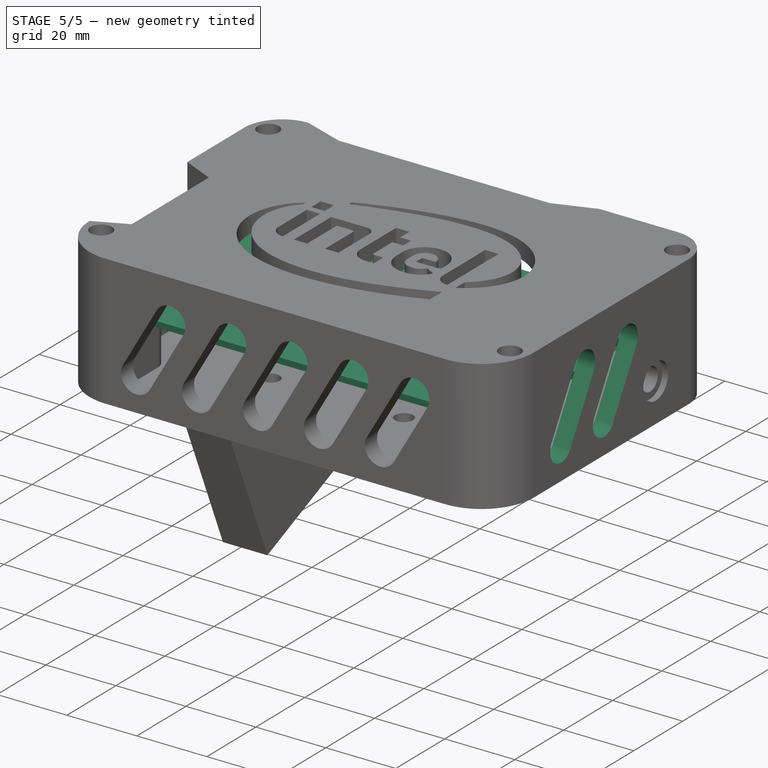
[diagram: stage 5 of 5 — iso view after this stage's code; geometry added in this stage tinted green]
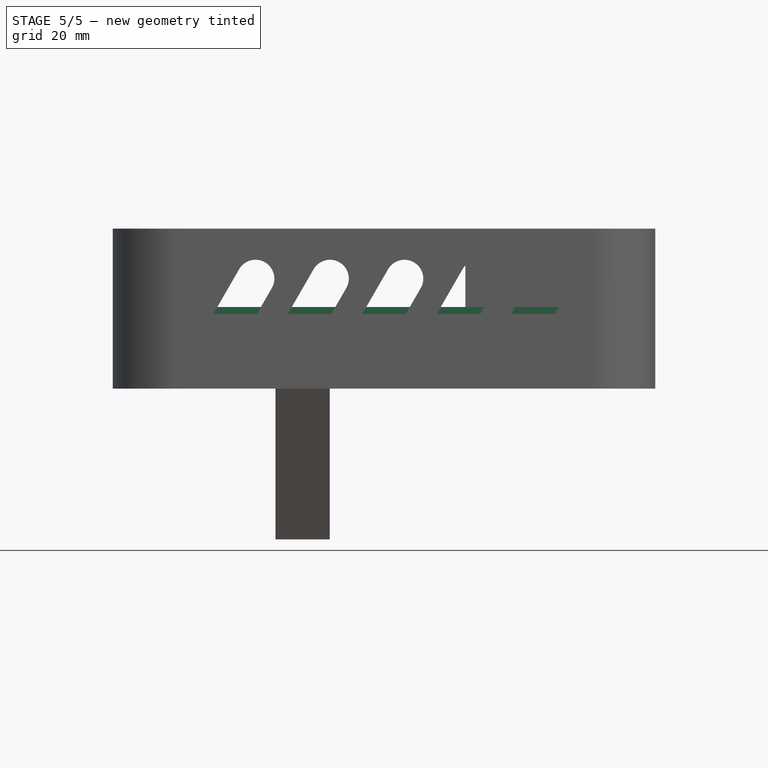
[diagram: stage 5 of 5 — front view after this stage's code; geometry added in this stage tinted green]
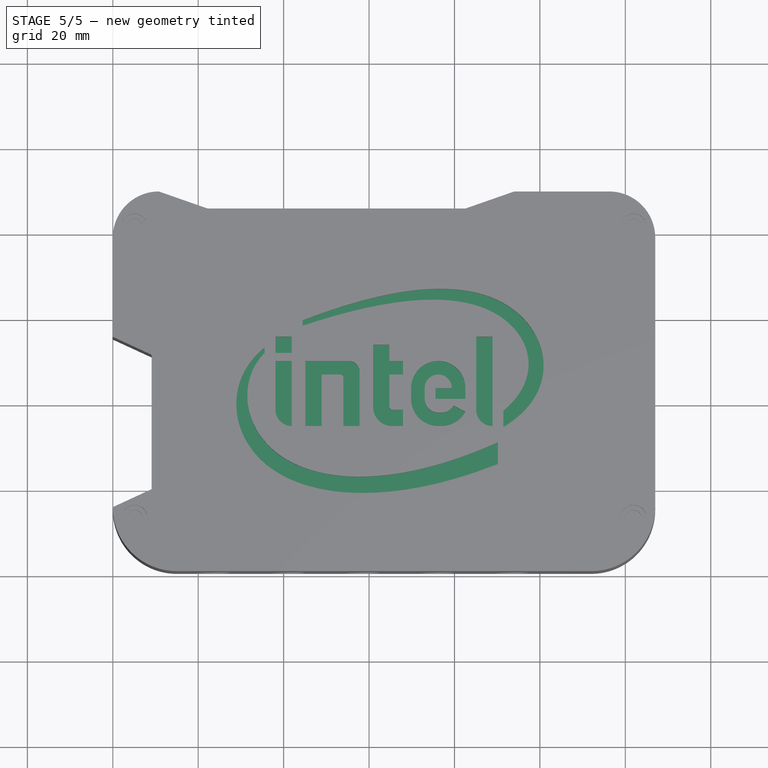
[diagram: stage 5 of 5 — top view after this stage's code; geometry added in this stage tinted green]
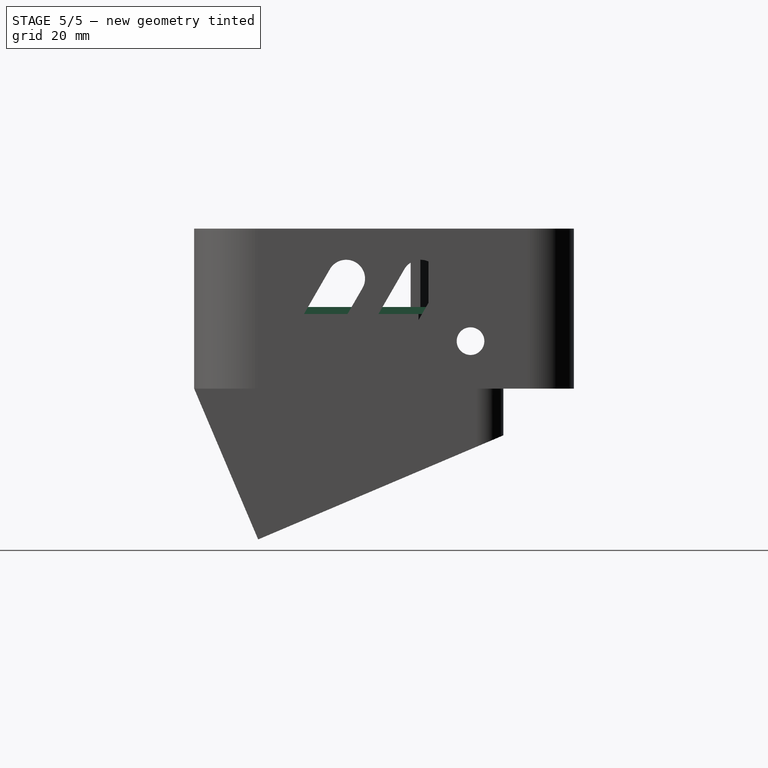
[diagram: stage 5 of 5 — right view after this stage's code; geometry added in this stage tinted green]
FEATURE [Part::Extrusion] Extrude003  label="MidTop Extrusion"
  Base = -> Sketch004
  Dir = (0,0,1)
  DirMode = 2
  FaceMakerClass = Part::FaceMakerBullseye
  LengthFwd = 4.7625
  LengthRev = 0
  Placement = pos=(0,0,32.7025) rot=(0,0,1;0rad)
  Solid = true
  Symmetric = false
FEATURE [Part::Extrusion] Extrude004  label="Galileo Extrusion"
  Base = -> Sketch001
  Dir = (0,0,1)
  DirMode = 2
  FaceMakerClass = Part::FaceMakerBullseye
  LengthFwd = 1.651
  LengthRev = 0
  Placement = pos=(0,0,17.4625) rot=(0,0,1;0rad)
  Solid = true
  Symmetric = false
FEATURE [Sketcher::SketchObject] Sketch014  label="Side Case Vent Sketch"
  FullyConstrained = false
  Placement = pos=(0,0,0) rot=(0.57735,0.57735,0.57735;2.0944rad)
  sketch-geometry (21):
    g0: LineSegment StartX=19.431 StartY=32.7025 StartZ=0 EndX=19.431 EndY=4.7625 EndZ=0
    g1: LineSegment StartX=74.549 StartY=32.7025 StartZ=0 EndX=74.549 EndY=4.7625 EndZ=0
    g2: LineSegment StartX=19.431 StartY=32.7025 StartZ=0 EndX=74.549 EndY=32.7025 EndZ=0
    g3: LineSegment StartX=19.431 StartY=4.7625 StartZ=0 EndX=74.549 EndY=4.7625 EndZ=0
    g4: Circle CenterX=64.7065 CenterY=11.1125 CenterZ=0 NormalX=0 NormalY=0 NormalZ=1 AngleXU=0 Radius=5.08
    g5: LineSegment StartX=19.431 StartY=30.1625 StartZ=0 EndX=74.549 EndY=30.1625 EndZ=0
    g6: LineSegment StartX=31.7716 StartY=27.9551 StartZ=0 EndX=22.2047 EndY=11.3847 EndZ=0
    g7: LineSegment StartX=39.4183 StartY=23.5403 StartZ=0 EndX=29.8513 EndY=6.9699 EndZ=0
    g8: LineSegment StartX=49.21 StartY=27.9551 StartZ=0 EndX=39.643 EndY=11.3847 EndZ=0
    g9: LineSegment StartX=56.8566 StartY=23.5403 StartZ=0 EndX=47.2897 EndY=6.9699 EndZ=0
    g10: LineSegment StartX=31.7716 StartY=27.9551 StartZ=0 EndX=49.21 EndY=27.9551 EndZ=0
    g11: LineSegment StartX=47.2897 StartY=6.9699 StartZ=0 EndX=29.8513 EndY=6.9699 EndZ=0
    g12: LineSegment StartX=22.2047 StartY=11.3847 StartZ=0 EndX=29.8513 EndY=6.9699 EndZ=0
    g13: LineSegment StartX=31.7716 StartY=27.9551 StartZ=0 EndX=39.4183 EndY=23.5403 EndZ=0
    g14: LineSegment StartX=49.21 StartY=27.9551 StartZ=0 EndX=56.8566 EndY=23.5403 EndZ=0
    g15: LineSegment StartX=39.643 StartY=11.3847 StartZ=0 EndX=47.2897 EndY=6.9699 EndZ=0
    g16: ArcOfCircle CenterX=26.028 CenterY=9.1773 CenterZ=0 NormalX=0 NormalY=0 NormalZ=1 AngleXU=0 Radius=4.4148 StartAngle=2.61799 EndAngle=5.75959
    g17: ArcOfCircle CenterX=35.5949 CenterY=25.7477 CenterZ=0 NormalX=0 NormalY=0 NormalZ=1 AngleXU=0 Radius=4.4148 StartAngle=5.75959 EndAngle=8.90118
    g18: ArcOfCircle CenterX=43.4664 CenterY=9.1773 CenterZ=0 NormalX=0 NormalY=0 NormalZ=1 AngleXU=0 Radius=4.4148 StartAngle=2.61799 EndAngle=5.75959
    g19: ArcOfCircle CenterX=53.0333 CenterY=25.7477 CenterZ=0 NormalX=0 NormalY=0 NormalZ=1 AngleXU=0 Radius=4.4148 StartAngle=5.75959 EndAngle=8.90118
    g20: LineSegment StartX=59.6265 StartY=30.1625 StartZ=0 EndX=59.6265 EndY=4.7625 EndZ=0
  constraints (55):
    c: Vertical(g0)
    c: Vertical(g1)
    c: Coincident(g2,g0)
    c: Coincident(g2,g1)
    c: Coincident(g3,g0)
    c: Coincident(g3,g1)
    c: Diameter(g4) = 10.16
    c: PointOnObject(g5,g0)
    c: PointOnObject(g5,g1)
    c: Horizontal(g5)
    c: Coincident(g10,g6)
    c: Coincident(g10,g8)
    c: Horizontal(g10)
    c: Coincident(g11,g9)
    c: Coincident(g11,g7)
    c: Horizontal(g11)
    c: Coincident(g12,g6)
    c: Coincident(g12,g7)
    c: Coincident(g13,g6)
    c: Coincident(g13,g7)
    c: Coincident(g14,g8)
    c: Coincident(g14,g9)
    c: Coincident(g15,g8)
    c: Coincident(g15,g9)
    c: Equal(g15,g12)
    c: Equal(g12,g13)
    c: Equal(g13,g14)
    c: Parallel(g12,g15)
    c: Parallel(g15,g13)
    c: Parallel(g13,g14)
    c: Angle(g11,g7) = 1.0472
    c: Parallel(g8,g6)
    c: Angle(g13,g10) = 0.523599
    c: DistanceX(g6,g7) = 17.2136
    c: DistanceX(g7,g8) = 9.7917
    c: PointOnObject(g16,g12)
    c: Coincident(g16,g6)
    c: Coincident(g16,g7)
    c: PointOnObject(g17,g13)
    c: Coincident(g17,g6)
    c: Coincident(g17,g7)
    c: PointOnObject(g18,g15)
    c: Coincident(g18,g8)
    c: Coincident(g18,g9)
    c: PointOnObject(g19,g14)
    c: Coincident(g19,g8)
    c: Coincident(g19,g9)
    c: Tangent(g16,g3)
    c: Tangent(g5,g17)
    c: DistanceY(g5,g1) = 2.54
    c: PointOnObject(g20,g5)
    c: PointOnObject(g20,g3)
    c: Vertical(g20)
    c: Tangent(g20,g4)
    c: DistanceX(g0,g6) = 2.77368
FEATURE [Part::Extrusion] Extrude014  label="Side Case Vent Extrusion"
  Base = -> Sketch014
  Dir = (1,0,0)
  DirMode = 2
  FaceMakerClass = Part::FaceMakerBullseye
  LengthFwd = 4.953
  LengthRev = 0
  Placement = pos=(122.047,0,0) rot=(0,0,1;0rad)
  Solid = true
  Symmetric = false
FEATURE [Part::Cut] Cut004  label="Galileo Case with Front Vents"
  Base = -> Fusion001
  Tool = -> Extrude013
FEATURE [Part::Cut] Cut005  label="Galileo Case with Vents"
  Base = -> Cut004
  Tool = -> Extrude014
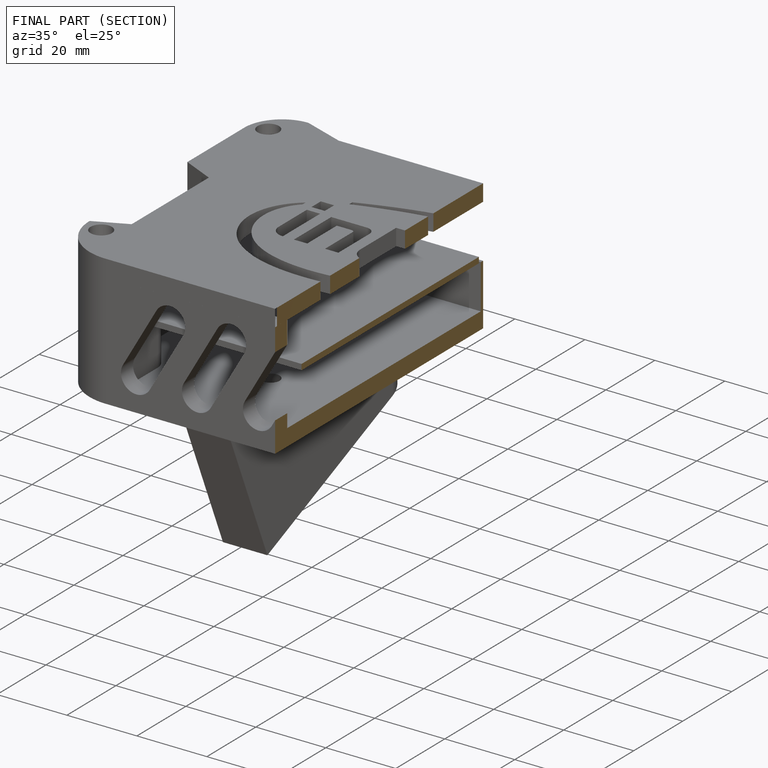
[diagram: finished part — half-section view (interior)]
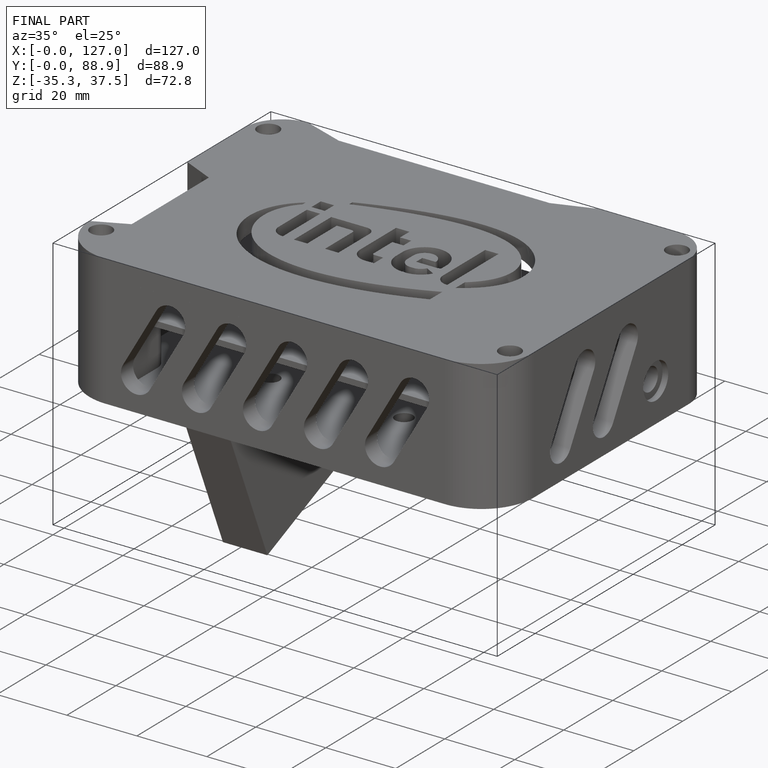
[diagram: finished part — iso view with bounding-box wireframe]
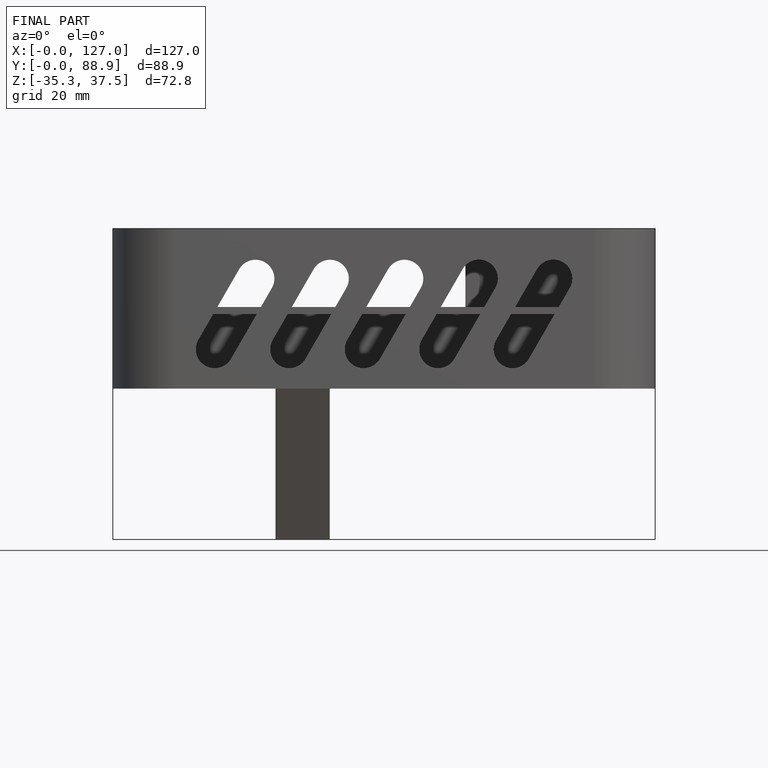
[diagram: finished part — front view with bounding-box wireframe]
